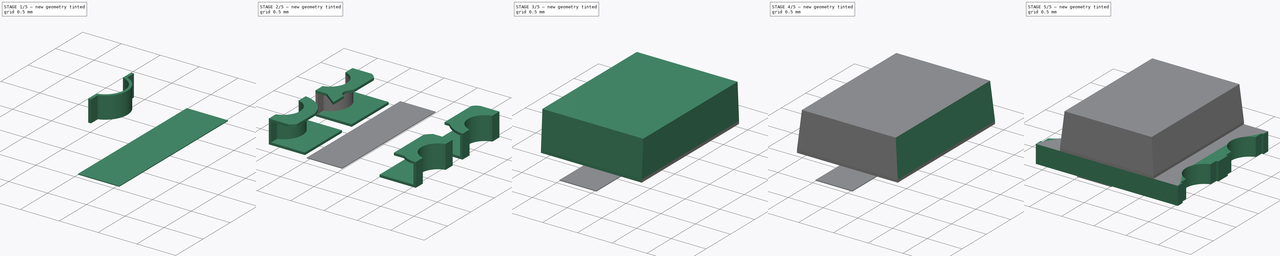
[diagram: build sequence overview — one tinted view per stage of 5, left to right]
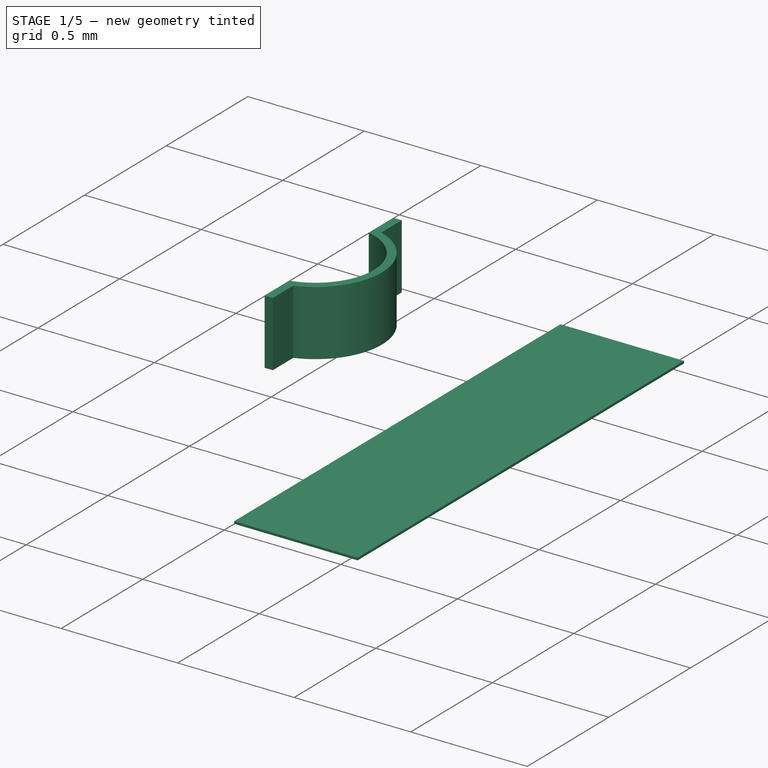
[diagram: stage 1 of 5 — iso view after this stage's code; geometry added in this stage tinted green]
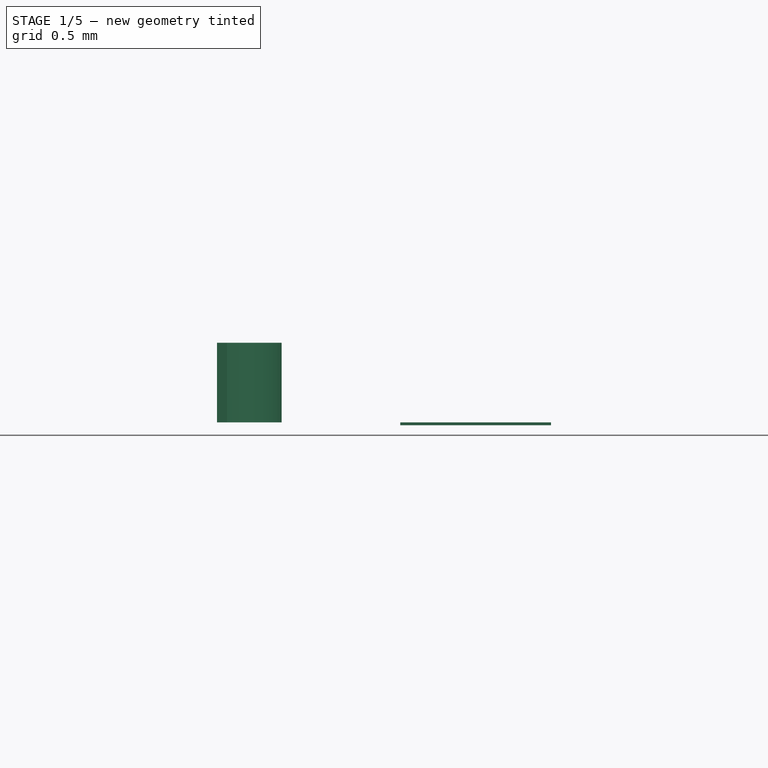
[diagram: stage 1 of 5 — front view after this stage's code; geometry added in this stage tinted green]
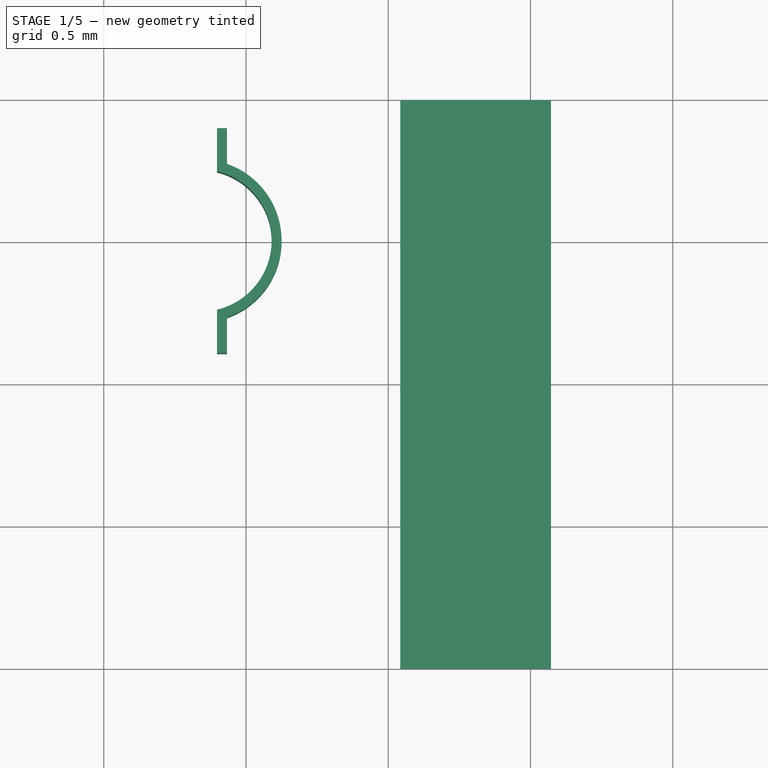
[diagram: stage 1 of 5 — top view after this stage's code; geometry added in this stage tinted green]
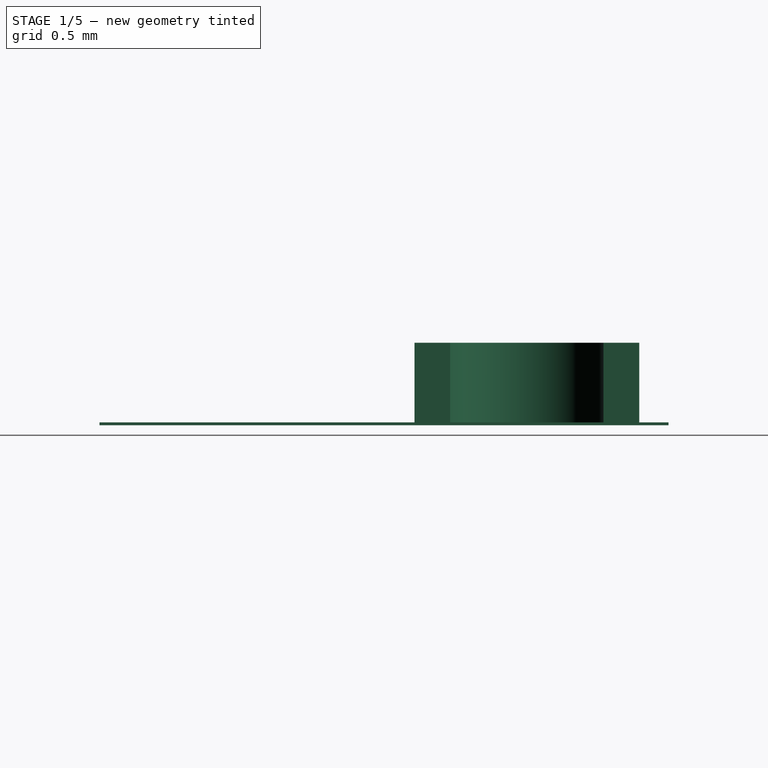
[diagram: stage 1 of 5 — right view after this stage's code; geometry added in this stage tinted green]
FCSTD DOCUMENT  (FreeCAD 1.0R39319 (Git))
Label: LED_WS2812B-2020_PLCC4_2.0x2.0mm
License: All rights reserved
LicenseURL: https://en.wikipedia.org/wiki/All_rights_reserved
objects: Sketcher::SketchObject×11, Part::Extrusion×10, Part::Chamfer×3, Image::ImagePlane×2, Part::Fuse×2, Part::FeaturePython×2
note: 39 computed .brp shape members not serialized (recipe doc carries the construction recipe); baked Part::Feature solids carry a one-line shape summary decoded from their .brp

FEATURE [Image::ImagePlane] _026_02_04_155943_hyprshot  label="TopView"
  Placement = pos=(-0.12,0.145,1) rot=(0,0,1;3.14159rad)
  XSize = 3.1853
  YSize = 3.37243
FEATURE [Image::ImagePlane] _026_02_04_155935_hyprshot  label="BackView"
  Placement = pos=(0.21,0.18,0) rot=(1,0,0;3.14159rad)
  XSize = 3.6473
  YSize = 3.36034
FEATURE [Sketcher::SketchObject] Sketch  label="PadBottom"
  ArcFitTolerance = 1e-06
  FullyConstrained = true
  MakeInternals = false
  sketch-geometry (6):
    g0: LineSegment StartX=-1.102 StartY=0.745179 StartZ=0 EndX=-1.102 EndY=0.897 EndZ=0
    g1: LineSegment StartX=-1.102 StartY=0.897 StartZ=0 EndX=-0.56 EndY=0.897 EndZ=0
    g2: LineSegment StartX=-0.56 StartY=0.897 StartZ=0 EndX=-0.56 EndY=0.107 EndZ=0
    g3: LineSegment StartX=-0.56 StartY=0.107 StartZ=0 EndX=-1.102 EndY=0.107 EndZ=0
    g4: LineSegment StartX=-1.102 StartY=0.107 StartZ=0 EndX=-1.102 EndY=0.258821 EndZ=0
    g5: ArcOfCircle CenterX=-1.16 CenterY=0.502 CenterZ=0 NormalX=0 NormalY=0 NormalZ=1 AngleXU=0 Radius=0.25 StartAngle=4.94652 EndAngle=7.61985
  constraints (19):
    c: Vertical(g0)
    c: Coincident(g0,g1)
    c: Horizontal(g1)
    c: Coincident(g1,g2)
    c: Vertical(g2)
    c: Coincident(g2,g3)
    c: Horizontal(g3)
    c: Coincident(g3,g4)
    c: Vertical(g4)
    c: Coincident(g5,g4)
    c: Coincident(g5,g0)
    c: Equal(g4,g0)
    c: Vertical(g0,g4)
    c: DistanceY(g2,g2) = 0.79
    c: DistanceX(g1,g1) = 0.542
    c: Radius(g5) = 0.25
    c: Distance(g5,g2) = 0.35
    c: Distance(g-2,g2) = 0.56
    c: Distance(g-1,g3) = 0.107
FEATURE [Part::Extrusion] Extrude
  Base = -> Sketch
  Dir = (0,0,1)
  DirMode = 2
  FaceMakerClass = Part::FaceMakerBullseye
  FaceMakerMode = 3
  LengthFwd = 0.035
  LengthRev = 0
  Solid = true
  Symmetric = false
FEATURE [Sketcher::SketchObject] Sketch001
  ArcFitTolerance = 1e-06
  AttachmentSupport = -> [Extrude]
  ExternalGeometry = -> [Extrude]
  FullyConstrained = true
  MakeInternals = false
  MapMode = 5
  Placement = pos=(0,0,0.035) rot=(0,0,1;0rad)
  sketch-geometry (8):
    g0: ArcOfCircle CenterX=-1.16 CenterY=0.502 CenterZ=0 NormalX=0 NormalY=0 NormalZ=1 AngleXU=0 Radius=0.25 StartAngle=4.94652 EndAngle=7.61985
    g1: ArcOfCircle CenterX=-1.16 CenterY=0.502 CenterZ=0 NormalX=0 NormalY=0 NormalZ=1 AngleXU=0 Radius=0.285 StartAngle=5.04479 EndAngle=7.52158
    g2: LineSegment StartX=-1.102 StartY=0.745179 StartZ=0 EndX=-1.102 EndY=0.897 EndZ=0
    g3: LineSegment StartX=-1.102 StartY=0.897 StartZ=0 EndX=-1.067 EndY=0.897 EndZ=0
    g4: LineSegment StartX=-1.067 StartY=0.897 StartZ=0 EndX=-1.067 EndY=0.771399 EndZ=0
    g5: LineSegment StartX=-1.067 StartY=0.232601 StartZ=0 EndX=-1.067 EndY=0.107 EndZ=0
    g6: LineSegment StartX=-1.067 StartY=0.107 StartZ=0 EndX=-1.102 EndY=0.107 EndZ=0
    g7: LineSegment StartX=-1.102 StartY=0.107 StartZ=0 EndX=-1.102 EndY=0.258821 EndZ=0
  constraints (21):
    c: Coincident(g0,g-4)
    c: Coincident(g0,g-5)
    c: Coincident(g0,g2)
    c: Coincident(g2,g-4)
    c: Coincident(g2,g3)
    c: Horizontal(g3)
    c: Coincident(g3,g4)
    c: Coincident(g4,g1)
    c: Vertical(g5)
    c: Coincident(g5,g6)
    c: Coincident(g6,g-5)
    c: Coincident(g6,g7)
    c: Coincident(g7,g0)
    c: Vertical(g4)
    c: Equal(g6,g3)
    c: Equal(g4,g5)
    c: DistanceX(g6,g6) = 0.035
    c: Coincident(g1,g5)
    c: Distance(g1,g0) = 0.035
    c: Coincident(g1,g-3)
    c: Coincident(g0,g1)
FEATURE [Part::Extrusion] Extrude001
  Base = -> Sketch001
  Dir = (0,0,1)
  DirMode = 2
  FaceMakerClass = Part::FaceMakerBullseye
  FaceMakerMode = 3
  LengthFwd = 0.28
  LengthRev = 0
  Solid = true
  Symmetric = false
FEATURE [Sketcher::SketchObject] Sketch010
  ArcFitTolerance = 1e-06
  AttachmentSupport = -> [Extrude003]
  FullyConstrained = true
  MakeInternals = false
  MapMode = 5
  Placement = pos=(0,0,0.035) rot=(1,0,0;3.14159rad)
  sketch-geometry (6):
    g0: LineSegment StartX=-0.458 StartY=1 StartZ=0 EndX=-0.458 EndY=-1 EndZ=0
    g1: LineSegment StartX=-0.458 StartY=-1 StartZ=0 EndX=0.072 EndY=-1 EndZ=0
    g2: LineSegment StartX=0.072 StartY=-1 StartZ=0 EndX=0.072 EndY=1 EndZ=0
    g3: LineSegment StartX=0.072 StartY=1 StartZ=0 EndX=-0.458 EndY=1 EndZ=0
    g4: LineSegment [constr] StartX=0.072 StartY=1 StartZ=0 EndX=0 EndY=0 EndZ=0
    g5: LineSegment [constr] StartX=0 StartY=0 StartZ=0 EndX=0.072 EndY=-1 EndZ=0
  constraints (16):
    c: Coincident(g0,g1)
    c: Coincident(g1,g2)
    c: Coincident(g2,g3)
    c: Coincident(g3,g0)
    c: Vertical(g0)
    c: Vertical(g2)
    c: Horizontal(g1)
    c: Horizontal(g3)
    c: DistanceX(g1,g1) = 0.53
    c: DistanceY(g0,g0) = 2
    c: Distance(g-1,g2) = 0.072
    c: Coincident(g4,g2)
    c: Coincident(g4,g-1)
    c: Coincident(g5,g4)
    c: Coincident(g5,g1)
    c: Equal(g5,g4)
FEATURE [Part::Extrusion] Extrude009  label="PolarityMark"
  Base = -> Sketch010
  Dir = (0,0,-1)
  DirMode = 2
  FaceMakerClass = Part::FaceMakerBullseye
  FaceMakerMode = 3
  LengthFwd = 0.01
  LengthRev = 0
  Solid = true
  Symmetric = false
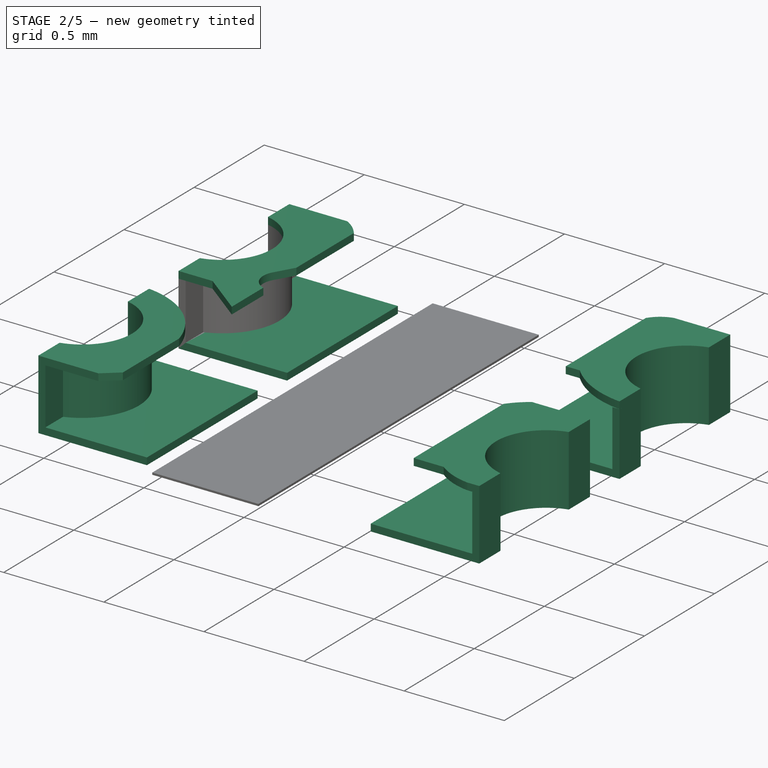
[diagram: stage 2 of 5 — iso view after this stage's code; geometry added in this stage tinted green]
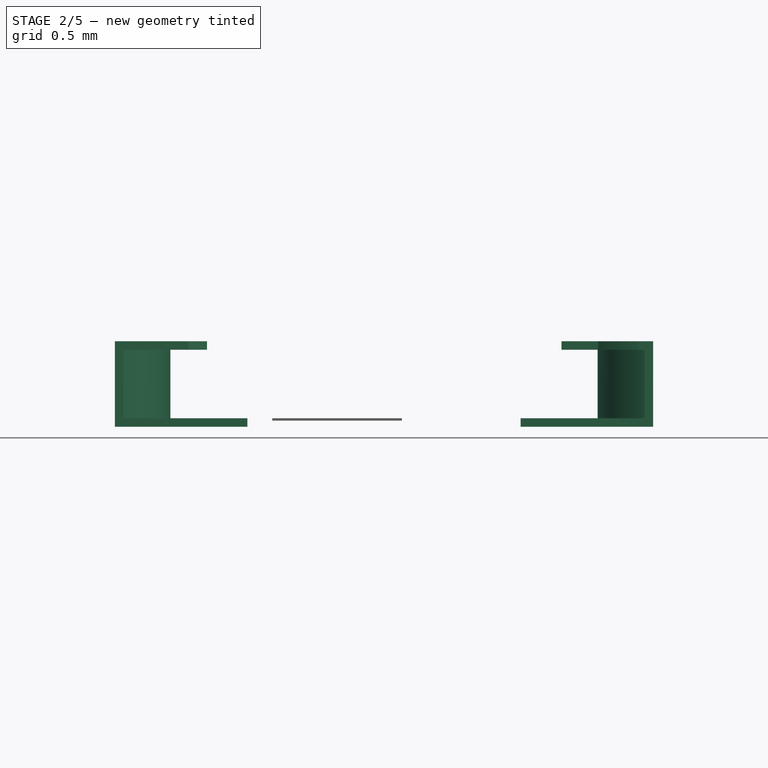
[diagram: stage 2 of 5 — front view after this stage's code; geometry added in this stage tinted green]
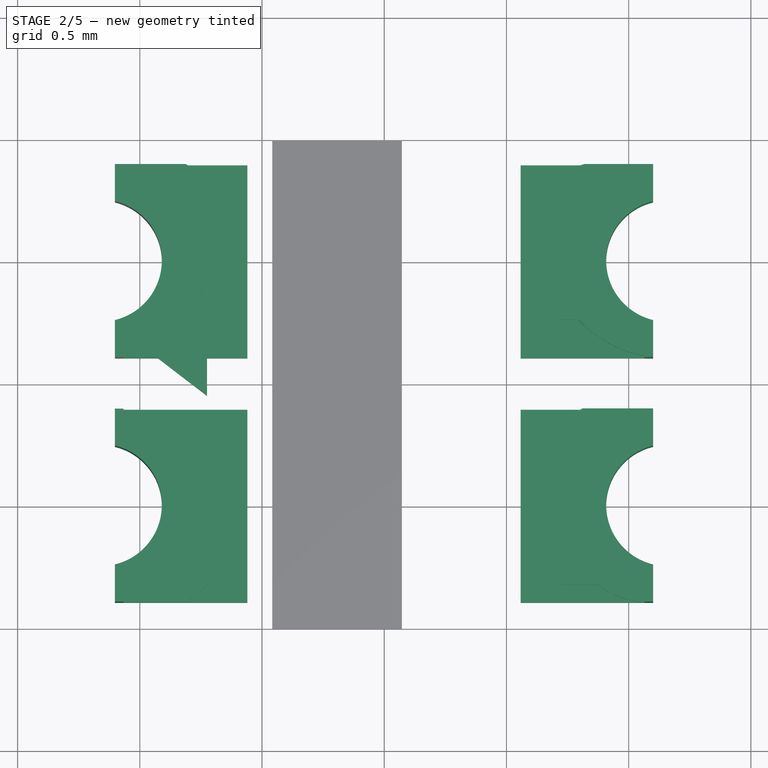
[diagram: stage 2 of 5 — top view after this stage's code; geometry added in this stage tinted green]
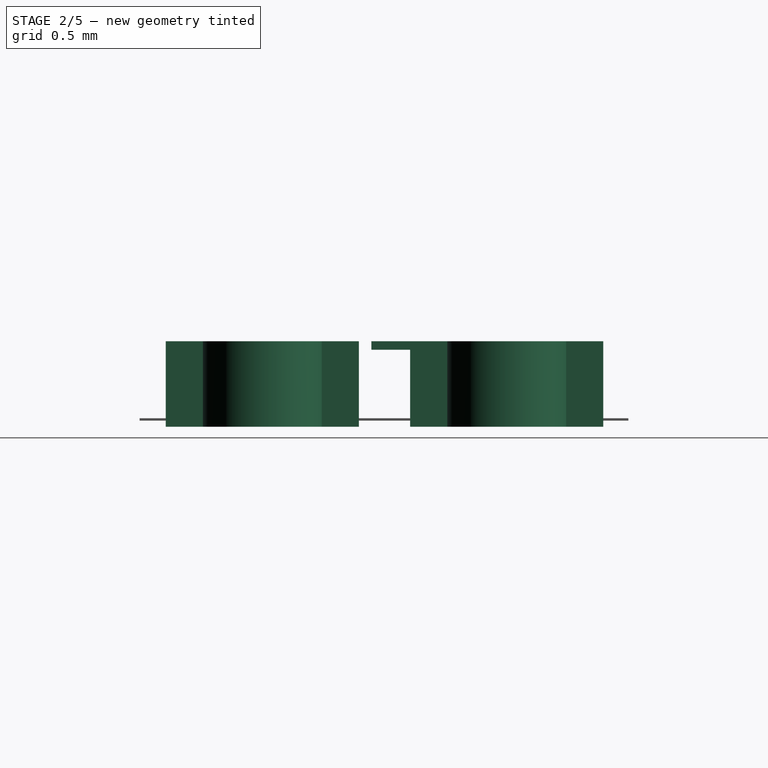
[diagram: stage 2 of 5 — right view after this stage's code; geometry added in this stage tinted green]
FEATURE [Part::Fuse] Fusion
  Base = -> Extrude
  Refine = true
  Tool = -> Extrude001
FEATURE [Part::FeaturePython] Array  # Draft array (typed FeaturePython)
  AlwaysSyncPlacement = false
  Angle = 360
  ArrayType = 0
  Axis = (0,0,1)
  Base = -> Fusion
  Center = (0,0,0)
  Count = 2
  ExpandArray = false
  Fuse = true
  IntervalAxis = (0,0,0)
  IntervalX = (100,0,0)
  IntervalY = (0,-1,0)
  IntervalZ = (0,0,100)
  NumberCircles = 3
  NumberPolar = 5
  NumberX = 1
  NumberY = 2
  NumberZ = 1
  PlacementList = 2 placements: [(0,0,0),(0,-1,0)]
  RadialDistance = 50
  ScaleList = (2) [(1,1,1),(1,1,1)]
  Symmetry = 1
  TangentialDistance = 25
FEATURE [Part::FeaturePython] Array001  # Draft array (typed FeaturePython)
  AlwaysSyncPlacement = false
  Angle = 360
  ArrayType = 1
  Axis = (0,0,1)
  Base = -> Array
  Center = (0,0,0)
  Count = 2
  ExpandArray = false
  Fuse = true
  IntervalAxis = (-0.002,0.004,0)
  IntervalX = (50,0,0)
  IntervalY = (0,50,0)
  IntervalZ = (0,0,50)
  NumberCircles = 3
  NumberPolar = 2
  NumberX = 2
  NumberY = 2
  NumberZ = 1
  PlacementList = 2 placements: [(0,0,0),(-0.002,0.004,0)]
  RadialDistance = 50
  ScaleList = (2) [(1,1,1),(1,1,1)]
  Symmetry = 1
  TangentialDistance = 25
FEATURE [Sketcher::SketchObject] Sketch002
  ArcFitTolerance = 1e-06
  AttachmentSupport = -> [Fusion]
  ExternalGeometry = -> [Fusion]
  FullyConstrained = true
  MakeInternals = false
  MapMode = 5
  Placement = pos=(0,0,0.315) rot=(0,0,1;0rad)
  sketch-geometry (39):
    g0: ArcOfCircle CenterX=-1.16 CenterY=0.502 CenterZ=0 NormalX=0 NormalY=0 NormalZ=1 AngleXU=0 Radius=0.25 StartAngle=4.94652 EndAngle=7.61985
    g1: LineSegment StartX=-1.102 StartY=0.745179 StartZ=0 EndX=-1.102 EndY=0.897 EndZ=0
    g2: LineSegment StartX=-1.102 StartY=0.258821 StartZ=0 EndX=-1.102 EndY=0.107 EndZ=0
    g3: ArcOfCircle CenterX=-1.16 CenterY=-0.498 CenterZ=0 NormalX=0 NormalY=0 NormalZ=1 AngleXU=0 Radius=0.25 StartAngle=4.94652 EndAngle=7.61985
    g4: LineSegment StartX=-1.102 StartY=-0.254821 StartZ=0 EndX=-1.102 EndY=-0.103 EndZ=0
    g5: LineSegment StartX=-1.102 StartY=-0.741179 StartZ=0 EndX=-1.102 EndY=-0.893 EndZ=0
    g6: ArcOfCircle CenterX=1.158 CenterY=-0.498 CenterZ=0 NormalX=0 NormalY=0 NormalZ=1 AngleXU=0 Radius=0.25 StartAngle=1.80493 EndAngle=4.47826
    g7: LineSegment StartX=1.1 StartY=-0.741179 StartZ=0 EndX=1.1 EndY=-0.893 EndZ=0
    g8: LineSegment StartX=1.1 StartY=-0.254821 StartZ=0 EndX=1.1 EndY=-0.103 EndZ=0
    g9: ArcOfCircle CenterX=1.158 CenterY=0.502 CenterZ=0 NormalX=0 NormalY=0 NormalZ=1 AngleXU=0 Radius=0.25 StartAngle=1.80493 EndAngle=4.47826
    g10: LineSegment StartX=1.1 StartY=0.258821 StartZ=0 EndX=1.1 EndY=0.107 EndZ=0
    g11: LineSegment StartX=1.1 StartY=0.745179 StartZ=0 EndX=1.1 EndY=0.897 EndZ=0
    g12: LineSegment StartX=-1.102 StartY=0.897 StartZ=0 EndX=-0.812 EndY=0.897 EndZ=0
    g13: LineSegment StartX=-1.102 StartY=0.107 StartZ=0 EndX=-0.932 EndY=0.107 EndZ=0
    g14: LineSegment StartX=-0.932 StartY=0.107 StartZ=0 EndX=-0.725 EndY=-0.0518367 EndZ=0
    g15: LineSegment StartX=-0.725 StartY=-0.0518367 StartZ=0 EndX=-0.725 EndY=0.173163 EndZ=0
    g16: LineSegment StartX=-0.725 StartY=0.409 StartZ=0 EndX=-0.725 EndY=0.819 EndZ=0
    g17: LineSegment StartX=-1.102 StartY=-0.893 StartZ=0 EndX=-0.802 EndY=-0.893 EndZ=0
    g18: LineSegment StartX=-0.802 StartY=-0.893 StartZ=0 EndX=-0.725 EndY=-0.828389 EndZ=0
    g19: LineSegment StartX=-0.725 StartY=-0.828389 StartZ=0 EndX=-0.725 EndY=-0.428389 EndZ=0
    g20: LineSegment [constr] StartX=-0.725 StartY=1 StartZ=0 EndX=-0.725 EndY=-1 EndZ=0
    g21: LineSegment [constr] StartX=-0.725 StartY=-1 StartZ=0 EndX=0.725 EndY=-1 EndZ=0
    g22: LineSegment [constr] StartX=0.725 StartY=-1 StartZ=0 EndX=0.725 EndY=1 EndZ=0
    g23: LineSegment [constr] StartX=0.725 StartY=1 StartZ=0 EndX=-0.725 EndY=1 EndZ=0
    g24: ArcOfCircle CenterX=-0.691327 CenterY=0.267323 CenterZ=0 NormalX=0 NormalY=0 NormalZ=1 AngleXU=0 Radius=0.1 StartAngle=2.61799 EndAngle=4.36895
    g25: LineSegment StartX=-0.777929 StartY=0.317323 StartZ=0 EndX=-0.725 EndY=0.409 EndZ=0
    g26: ArcOfCircle CenterX=-0.951299 CenterY=0.654109 CenterZ=0 NormalX=0 NormalY=0 NormalZ=1 AngleXU=0 Radius=0.28 StartAngle=0.629691 EndAngle=1.05009
    g27: ArcOfCircle CenterX=-1.15841 CenterY=-0.54945 CenterZ=0 NormalX=0 NormalY=0 NormalZ=1 AngleXU=0 Radius=0.45 StartAngle=0.27238 EndAngle=1.44511
    g28: LineSegment StartX=1.1 StartY=0.897 StartZ=0 EndX=0.82 EndY=0.897 EndZ=0
    g29: LineSegment StartX=0.725 StartY=0.83 StartZ=0 EndX=0.725 EndY=0.26 EndZ=0
    g30: LineSegment StartX=0.795 StartY=0.26 StartZ=0 EndX=0.725 EndY=0.26 EndZ=0
    g31: LineSegment StartX=1.1 StartY=-0.103 StartZ=0 EndX=0.81 EndY=-0.103 EndZ=0
    g32: LineSegment StartX=0.725 StartY=-0.185 StartZ=0 EndX=0.725 EndY=-0.825 EndZ=0
    g33: LineSegment StartX=0.725 StartY=-0.825 StartZ=0 EndX=0.875 EndY=-0.825 EndZ=0
    g34: LineSegment StartX=1.1 StartY=-0.893 StartZ=0 EndX=1.04 EndY=-0.893 EndZ=0
    g35: ArcOfCircle CenterX=1.08645 CenterY=-0.546097 CenterZ=0 NormalX=0 NormalY=0 NormalZ=1 AngleXU=0 Radius=0.35 StartAngle=4.06368 EndAngle=4.57927
    g36: ArcOfCircle CenterX=1.00702 CenterY=-0.392281 CenterZ=0 NormalX=0 NormalY=0 NormalZ=1 AngleXU=0 Radius=0.35 StartAngle=2.1687 EndAngle=2.50777
    g37: ArcOfCircle CenterX=0.852197 CenterY=0.750496 CenterZ=0 NormalX=0 NormalY=0 NormalZ=1 AngleXU=0 Radius=0.15 StartAngle=1.78713 EndAngle=2.58296
    g38: ArcOfCircle CenterX=1.15346 CenterY=0.594075 CenterZ=0 NormalX=0 NormalY=0 NormalZ=1 AngleXU=0 Radius=0.49 StartAngle=3.89179 EndAngle=4.60307
  constraints (122):
    c: Coincident(g0,g-4)
    c: Coincident(g0,g-5)
    c: Coincident(g0,g-3)
    c: Coincident(g1,g0)
    c: Coincident(g1,g-4)
    c: Coincident(g2,g0)
    c: Coincident(g2,g-5)
    c: Coincident(g4,g3)
    c: Coincident(g5,g3)
    c: DistanceY(g3,g0) = 1
    c: Vertical(g4)
    c: Vertical(g5)
    c: Vertical(g3,g3)
    c: Vertical(g2,g4)
    c: Equal(g4,g5)
    c: Equal(g4,g2)
    c: Equal(g3,g0)
    c: Vertical(g0,g3)
    c: Coincident(g7,g6)
    c: Coincident(g8,g6)
    c: Coincident(g10,g9)
    c: Coincident(g11,g9)
    c: Equal(g10,g11)
    c: Equal(g10,g8)
    c: Equal(g9,g6)
    c: Vertical(g11)
    c: Vertical(g10)
    c: Vertical(g8)
    c: Vertical(g7)
    c: Distance(g11,g-2) = 1.1
    c: Equal(g0,g9)
    c: Horizontal(g1,g11)
    c: Horizontal(g8,g4)
    c: Vertical(g6,g9)
    c: Equal(g11,g1)
    c: Horizontal(g2,g10)
    c: Vertical(g9,g9)
    c: Vertical(g6,g6)
    c: Vertical(g8,g10)
    c: Equal(g7,g8)
    c: Coincident(g12,g1)
    c: Horizontal(g12)
    c: Coincident(g13,g2)
    c: Horizontal(g13)
    c: Coincident(g14,g13)
    c: Coincident(g15,g14)
    c: Vertical(g15)
    c: Vertical(g16)
    c: Coincident(g17,g5)
    c: Horizontal(g17)
    c: Coincident(g18,g17)
    c: Coincident(g19,g18)
    c: Vertical(g19)
    c: DistanceX(g17,g17) = 0.3
    c: Coincident(g20,g21)
    c: Coincident(g21,g22)
    c: Coincident(g22,g23)
    c: Coincident(g23,g20)
    c: Vertical(g20)
    c: Vertical(g22)
    c: Horizontal(g21)
    c: Horizontal(g23)
    c: DistanceX(g21,g21) = 1.45
    c: DistanceY(g20,g20) = 2
    c: Symmetric(g20,g21,g-1)
    c: DistanceX(g13,g13) = 0.17
    c: Coincident(g24,g15)
    c: Coincident(g25,g16)
    c: Tangent(g25,g24) = 1.5708
    c: Coincident(g26,g12)
    c: Coincident(g26,g16)
    c: Radius(g26) = 0.28
    c: DistanceX(g12,g12) = 0.29
    c: DistanceY(g16,g16) = 0.41
    c: Radius(g24) = 0.1
    c: PointOnObject(g15,g20)
    c: Angle(g15,g14) = 0.916298
    c: DistanceY(g15,g15) = 0.225
    c: PointOnObject(g16,g20)
    c: DistanceY(g16,g12) = 0.078
    c: Angle(g25,g20) = 0.523599
    c: Coincident(g27,g4)
    c: PointOnObject(g27,g20)
    c: Coincident(g19,g27)
    c: Radius(g27) = 0.45
    c: Angle(g18,g20) = 0.872665
    c: DistanceY(g19,g19) = 0.4
    c: Coincident(g28,g11)
    c: Horizontal(g28)
    c: PointOnObject(g29,g22)
    c: PointOnObject(g29,g22)
    c: Coincident(g30,g29)
    c: Horizontal(g30)
    c: Coincident(g31,g8)
    c: Horizontal(g31)
    c: PointOnObject(g32,g22)
    c: PointOnObject(g32,g22)
    c: Coincident(g33,g32)
    c: Horizontal(g33)
    c: Coincident(g34,g7)
    c: Horizontal(g34)
    c: Coincident(g35,g33)
    c: Coincident(g35,g34)
    c: Radius(g35) = 0.35
    c: DistanceX(g33,g33) = 0.15
    c: DistanceY(g21,g32) = 0.175
    c: DistanceX(g34,g34) = 0.06
    c: DistanceY(g32,g32) = 0.64
    c: Coincident(g36,g32)
    c: Coincident(g36,g31)
    c: Radius(g36) = 0.35
    c: DistanceX(g31,g31) = 0.29
    c: DistanceX(g28,g28) = 0.28
    c: Coincident(g37,g29)
    c: Coincident(g37,g28)
    c: Radius(g37) = 0.15
    c: Coincident(g38,g30)
    c: Coincident(g38,g10)
    c: Radius(g38) = 0.49
    c: DistanceY(g29,g29) = 0.57
    c: Distance(g30,g30) = 0.07
    c: Distance(g29,g-1) = 0.26
FEATURE [Part::Extrusion] Extrude002  label="TopPad"
  Base = -> Sketch002
  Dir = (0,0,1)
  DirMode = 2
  FaceMakerClass = Part::FaceMakerBullseye
  FaceMakerMode = 3
  LengthFwd = 0.035
  LengthRev = 0
  Solid = true
  Symmetric = false
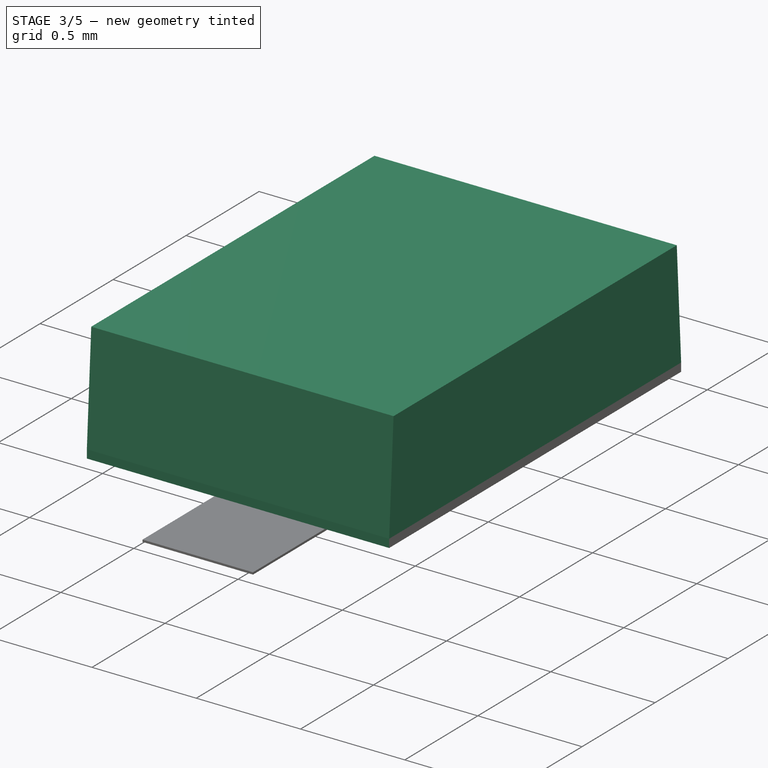
[diagram: stage 3 of 5 — iso view after this stage's code; geometry added in this stage tinted green]
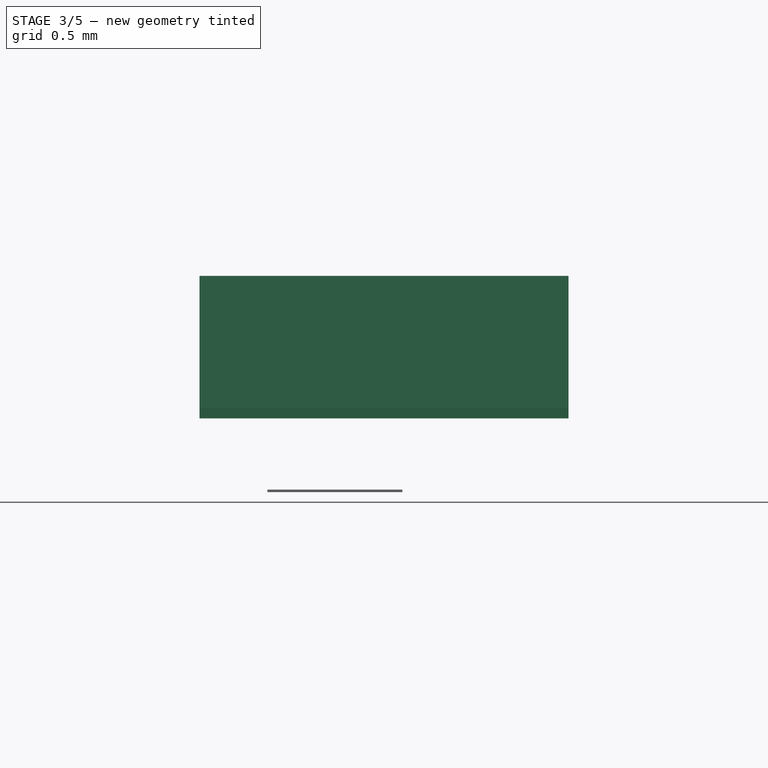
[diagram: stage 3 of 5 — front view after this stage's code; geometry added in this stage tinted green]
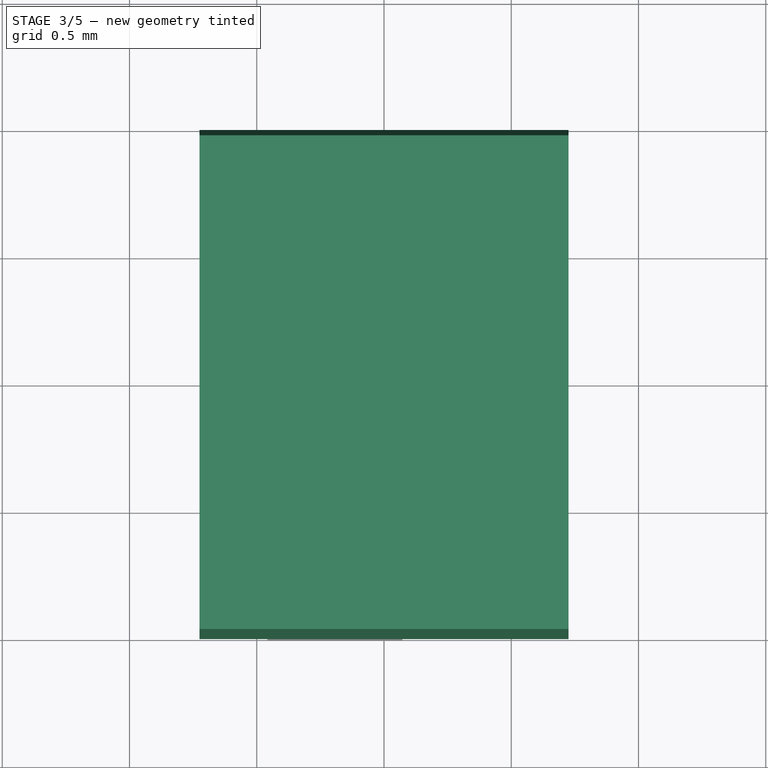
[diagram: stage 3 of 5 — top view after this stage's code; geometry added in this stage tinted green]
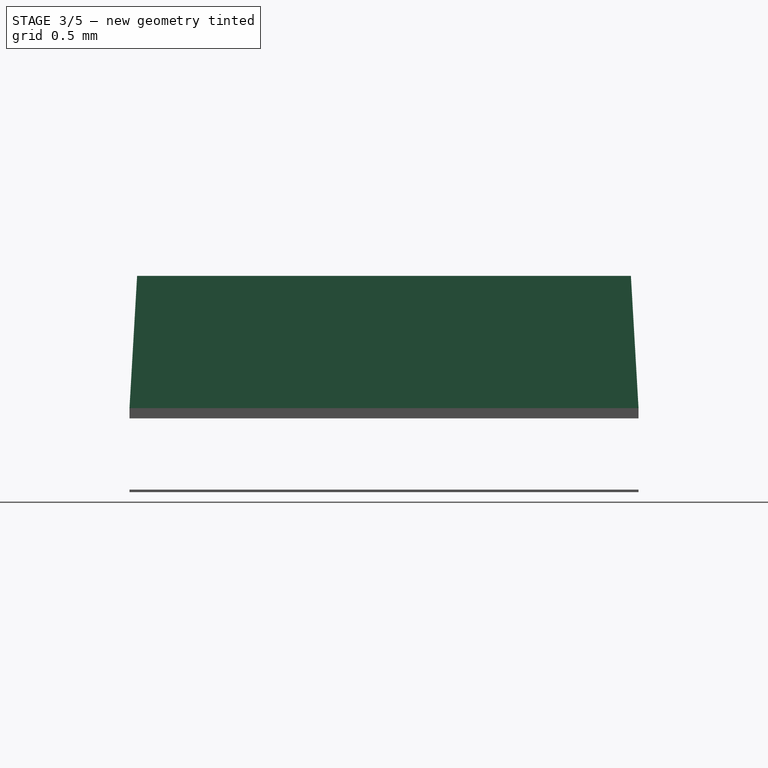
[diagram: stage 3 of 5 — right view after this stage's code; geometry added in this stage tinted green]
FEATURE [Part::Fuse] Fusion001  label="Pads"
  Base = -> Array001
  Refine = true
  Tool = -> Extrude002
FEATURE [Sketcher::SketchObject] Sketch009  label="CoverSketch"
  ArcFitTolerance = 1e-06
  AttachmentSupport = -> [Extrude003]
  ExternalGeometry = -> [Fusion001]
  FullyConstrained = true
  MakeInternals = false
  MapMode = 5
  Placement = pos=(0,0,0.315) rot=(0,0,1;0rad)
  sketch-geometry (4):
    g0: LineSegment StartX=-0.725 StartY=1 StartZ=0 EndX=-0.725 EndY=-1 EndZ=0
    g1: LineSegment StartX=-0.725 StartY=-1 StartZ=0 EndX=0.725 EndY=-1 EndZ=0
    g2: LineSegment StartX=0.725 StartY=-1 StartZ=0 EndX=0.725 EndY=1 EndZ=0
    g3: LineSegment StartX=0.725 StartY=1 StartZ=0 EndX=-0.725 EndY=1 EndZ=0
  constraints (11):
    c: Coincident(g0,g1)
    c: Coincident(g1,g2)
    c: Coincident(g2,g3)
    c: Coincident(g3,g0)
    c: Vertical(g0)
    c: Vertical(g2)
    c: Horizontal(g1)
    c: Horizontal(g3)
    c: DistanceY(g2,g2) = 2
    c: PointOnObject(g-3,g0)
    c: Symmetric(g0,g1,g-1)
FEATURE [Part::Extrusion] Extrude008
  Base = -> Sketch009
  Dir = (0,0,1)
  DirMode = 2
  FaceMakerClass = Part::FaceMakerBullseye
  FaceMakerMode = 3
  LengthFwd = 0.56
  LengthRev = 0
  Solid = true
  Symmetric = false
FEATURE [Part::Chamfer] Chamfer
  Base = -> Extrude008
  EdgeLinks = -> Extrude008 [Edge7,Edge12]
  Edges = 2 edges: [Edge7 r1=0.52 r2=0.03,Edge12 r1=0.52 r2=0.03]
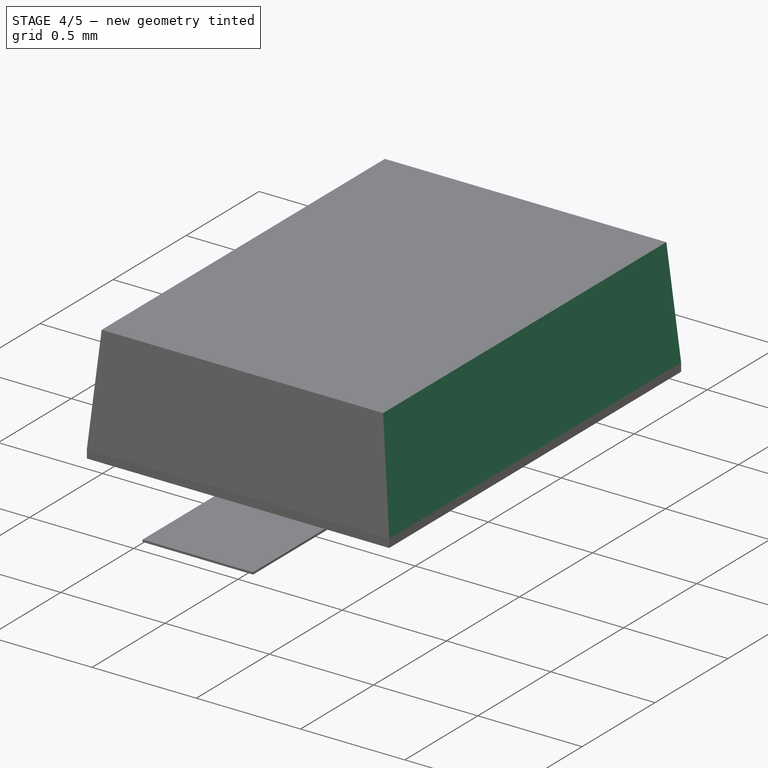
[diagram: stage 4 of 5 — iso view after this stage's code; geometry added in this stage tinted green]
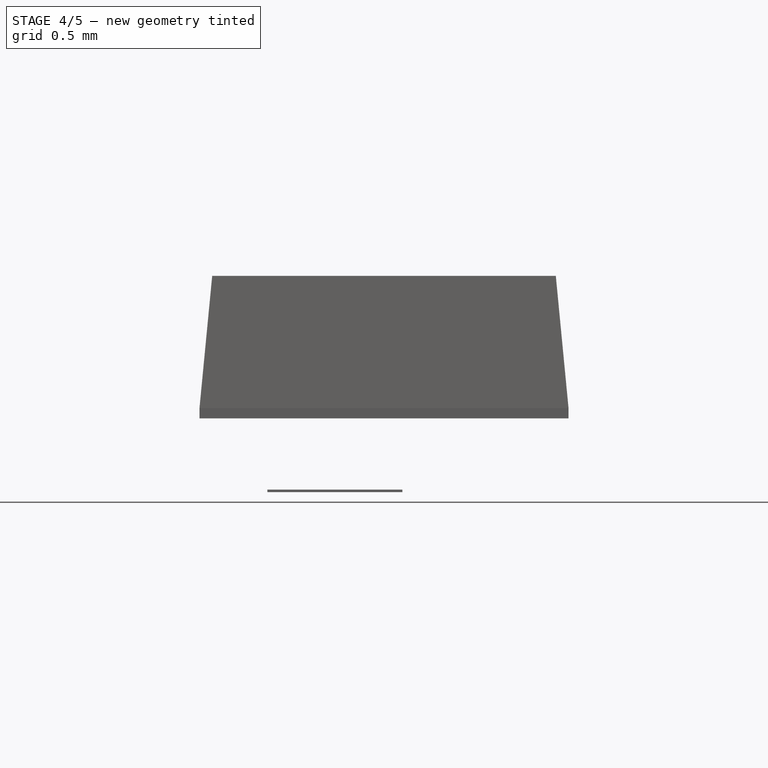
[diagram: stage 4 of 5 — front view after this stage's code; geometry added in this stage tinted green]
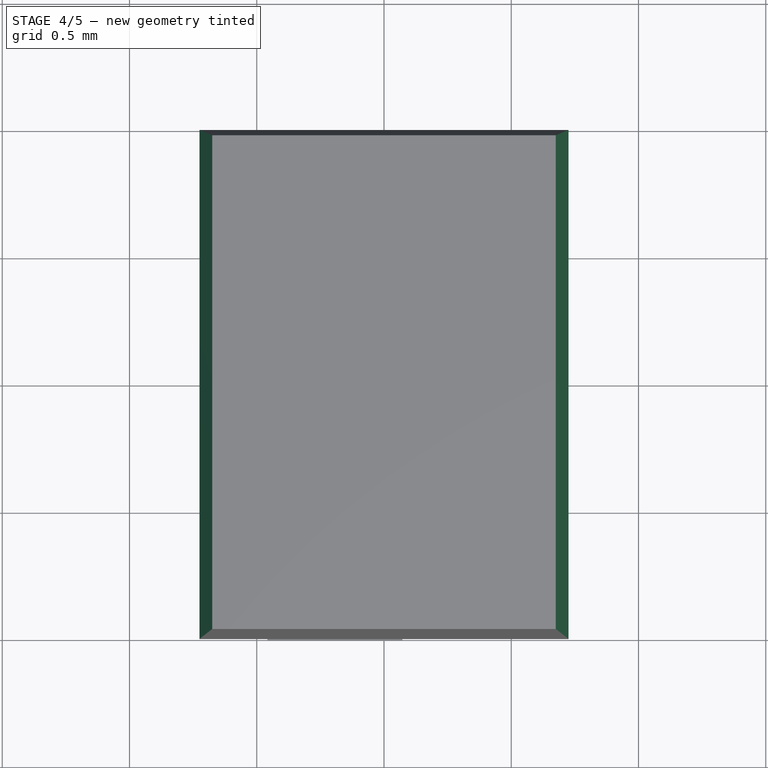
[diagram: stage 4 of 5 — top view after this stage's code; geometry added in this stage tinted green]
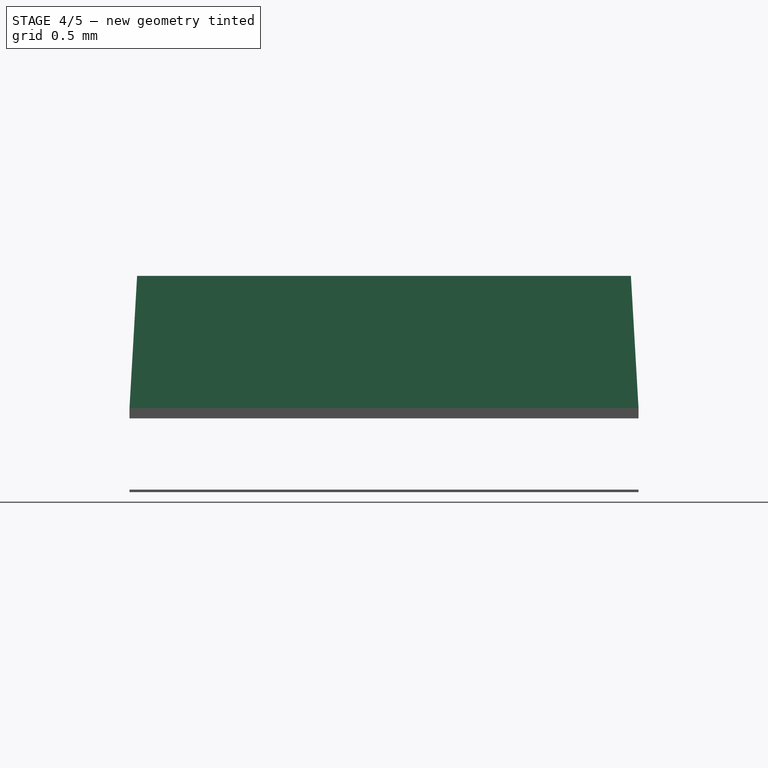
[diagram: stage 4 of 5 — right view after this stage's code; geometry added in this stage tinted green]
FEATURE [Sketcher::SketchObject] Sketch007  label="RSketch"
  ArcFitTolerance = 1e-06
  AttachmentSupport = -> [Extrude003]
  ExternalGeometry = -> [Fusion001]
  FullyConstrained = true
  MakeInternals = false
  MapMode = 5
  Placement = pos=(0,0,0.315) rot=(0,0,1;0rad)
  expr: Constraints[43] = Sketch004.Constraints[43]
  expr: Constraints[44] = Sketch004.Constraints[44]
  expr: Constraints[45] = Sketch004.Constraints[45]
  expr: Constraints[46] = Sketch004.Constraints[46]
  expr: Constraints[47] = Sketch004.Constraints[47]
  expr: Constraints[48] = Sketch004.Constraints[48]
  expr: Constraints[49] = Sketch004.Constraints[49]
  expr: Constraints[50] = Sketch004.Constraints[50]
  expr: Constraints[51] = Sketch004.Constraints[51]
  expr: Constraints[52] = Sketch004.Constraints[52]
  expr: Constraints[53] = Sketch004.Constraints[53]
  expr: Constraints[54] = Sketch004.Constraints[54]
  expr: Constraints[55] = Sketch004.Constraints[55]
  expr: Constraints[56] = Sketch004.Constraints[56]
  expr: Constraints[57] = Sketch004.Constraints[57]
  expr: Constraints[58] = Sketch004.Constraints[58]
  expr: Constraints[9] = Sketch004.Constraints[9]
  sketch-geometry (20):
    g0: LineSegment [constr] StartX=-0.725 StartY=1 StartZ=0 EndX=-0.725 EndY=-1 EndZ=0
    g1: LineSegment [constr] StartX=-0.725 StartY=-1 StartZ=0 EndX=0.725 EndY=-1 EndZ=0
    g2: LineSegment [constr] StartX=0.725 StartY=-1 StartZ=0 EndX=0.725 EndY=1 EndZ=0
    g3: LineSegment [constr] StartX=0.725 StartY=1 StartZ=0 EndX=-0.725 EndY=1 EndZ=0
    g4: LineSegment [constr] StartX=-0.28 StartY=-0.12 StartZ=0 EndX=-0.28 EndY=-0.545 EndZ=0
    g5: LineSegment [constr] StartX=-0.28 StartY=-0.545 StartZ=0 EndX=0.485 EndY=-0.545 EndZ=0
    g6: LineSegment [constr] StartX=0.485 StartY=-0.545 StartZ=0 EndX=0.485 EndY=-0.12 EndZ=0
    g7: LineSegment [constr] StartX=0.485 StartY=-0.12 StartZ=0 EndX=-0.28 EndY=-0.12 EndZ=0
    g8: LineSegment [constr] StartX=-0.385 StartY=0.325 StartZ=0 EndX=-0.385 EndY=0.12 EndZ=0
    g9: LineSegment [constr] StartX=-0.385 StartY=0.12 StartZ=0 EndX=-0.235 EndY=0.12 EndZ=0
    g10: LineSegment [constr] StartX=-0.235 StartY=0.12 StartZ=0 EndX=-0.235 EndY=0.325 EndZ=0
    g11: LineSegment [constr] StartX=-0.235 StartY=0.325 StartZ=0 EndX=-0.385 EndY=0.325 EndZ=0
    g12: LineSegment StartX=-0.09 StartY=0.335 StartZ=0 EndX=-0.09 EndY=0.125 EndZ=0
    g13: LineSegment StartX=-0.09 StartY=0.125 StartZ=0 EndX=0.105 EndY=0.125 EndZ=0
    g14: LineSegment StartX=0.105 StartY=0.125 StartZ=0 EndX=0.105 EndY=0.335 EndZ=0
    g15: LineSegment StartX=0.105 StartY=0.335 StartZ=0 EndX=-0.09 EndY=0.335 EndZ=0
    g16: LineSegment [constr] StartX=0.265 StartY=0.315 StartZ=0 EndX=0.265 EndY=0.13 EndZ=0
    g17: LineSegment [constr] StartX=0.265 StartY=0.13 StartZ=0 EndX=0.395 EndY=0.13 EndZ=0
    g18: LineSegment [constr] StartX=0.395 StartY=0.13 StartZ=0 EndX=0.395 EndY=0.315 EndZ=0
    g19: LineSegment [constr] StartX=0.395 StartY=0.315 StartZ=0 EndX=0.265 EndY=0.315 EndZ=0
  constraints (59):
    c: Coincident(g0,g1)
    c: Coincident(g1,g2)
    c: Coincident(g2,g3)
    c: Coincident(g3,g0)
    c: Vertical(g0)
    c: Vertical(g2)
    c: Horizontal(g1)
    c: Horizontal(g3)
    c: Symmetric(g1,g0,g-1)
    c: DistanceY(g2,g2) = 2
    c: PointOnObject(g-3,g2)
    c: Coincident(g4,g5)
    c: Coincident(g5,g6)
    c: Coincident(g6,g7)
    c: Coincident(g7,g4)
    c: Vertical(g4)
    c: Vertical(g6)
    c: Horizontal(g5)
    c: Horizontal(g7)
    c: Coincident(g8,g9)
    c: Coincident(g9,g10)
    c: Coincident(g10,g11)
    c: Coincident(g11,g8)
    c: Vertical(g8)
    c: Vertical(g10)
    c: Horizontal(g9)
    c: Horizontal(g11)
    c: Coincident(g12,g13)
    c: Coincident(g13,g14)
    c: Coincident(g14,g15)
    c: Coincident(g15,g12)
    c: Vertical(g12)
    c: Vertical(g14)
    c: Horizontal(g13)
    c: Horizontal(g15)
    c: Coincident(g16,g17)
    c: Coincident(g17,g18)
    c: Coincident(g18,g19)
    c: Coincident(g19,g16)
    c: Vertical(g16)
    c: Vertical(g18)
    c: Horizontal(g17)
    c: Horizontal(g19)
    c: DistanceX(g5,g5) = 0.765
    c: DistanceY(g4,g4) = 0.425
    c: DistanceX(g11,g11) = 0.15
    c: DistanceY(g8,g8) = 0.205
    c: DistanceY(g12,g12) = 0.21
    c: DistanceX(g15,g15) = 0.195
    c: DistanceY(g16,g16) = 0.185
    c: DistanceX(g19,g19) = 0.13
    c: DistanceY(g-1,g12) = 0.125
    c: DistanceY(g-1,g8) = 0.12
    c: DistanceY(g-1,g16) = 0.13
    c: DistanceY(g4,g-1) = 0.12
    c: DistanceX(g9,g-1) = 0.235
    c: DistanceX(g-1,g13) = 0.105
    c: DistanceX(g-1,g17) = 0.395
    c: DistanceX(g-1,g6) = 0.485
FEATURE [Part::Extrusion] Extrude006  label="R"
  Base = -> Sketch007
  Dir = (0,0,1)
  DirMode = 2
  FaceMakerClass = Part::FaceMakerBullseye
  FaceMakerMode = 3
  LengthFwd = 0.05
  LengthRev = 0
  Solid = true
  Symmetric = false
FEATURE [Sketcher::SketchObject] Sketch008  label="GSketch"
  ArcFitTolerance = 1e-06
  AttachmentSupport = -> [Extrude003]
  ExternalGeometry = -> [Fusion001]
  FullyConstrained = true
  MakeInternals = false
  MapMode = 5
  Placement = pos=(0,0,0.315) rot=(0,0,1;0rad)
  expr: Constraints[43] = Sketch004.Constraints[43]
  expr: Constraints[44] = Sketch004.Constraints[44]
  expr: Constraints[45] = Sketch004.Constraints[45]
  expr: Constraints[46] = Sketch004.Constraints[46]
  expr: Constraints[47] = Sketch004.Constraints[47]
  expr: Constraints[48] = Sketch004.Constraints[48]
  expr: Constraints[49] = Sketch004.Constraints[49]
  expr: Constraints[50] = Sketch004.Constraints[50]
  expr: Constraints[51] = Sketch004.Constraints[51]
  expr: Constraints[52] = Sketch004.Constraints[52]
  expr: Constraints[53] = Sketch004.Constraints[53]
  expr: Constraints[54] = Sketch004.Constraints[54]
  expr: Constraints[55] = Sketch004.Constraints[55]
  expr: Constraints[56] = Sketch004.Constraints[56]
  expr: Constraints[57] = Sketch004.Constraints[57]
  expr: Constraints[58] = Sketch004.Constraints[58]
  expr: Constraints[9] = Sketch004.Constraints[9]
  sketch-geometry (20):
    g0: LineSegment [constr] StartX=-0.725 StartY=1 StartZ=0 EndX=-0.725 EndY=-1 EndZ=0
    g1: LineSegment [constr] StartX=-0.725 StartY=-1 StartZ=0 EndX=0.725 EndY=-1 EndZ=0
    g2: LineSegment [constr] StartX=0.725 StartY=-1 StartZ=0 EndX=0.725 EndY=1 EndZ=0
    g3: LineSegment [constr] StartX=0.725 StartY=1 StartZ=0 EndX=-0.725 EndY=1 EndZ=0
    g4: LineSegment [constr] StartX=-0.28 StartY=-0.12 StartZ=0 EndX=-0.28 EndY=-0.545 EndZ=0
    g5: LineSegment [constr] StartX=-0.28 StartY=-0.545 StartZ=0 EndX=0.485 EndY=-0.545 EndZ=0
    g6: LineSegment [constr] StartX=0.485 StartY=-0.545 StartZ=0 EndX=0.485 EndY=-0.12 EndZ=0
    g7: LineSegment [constr] StartX=0.485 StartY=-0.12 StartZ=0 EndX=-0.28 EndY=-0.12 EndZ=0
    g8: LineSegment [constr] StartX=-0.385 StartY=0.325 StartZ=0 EndX=-0.385 EndY=0.12 EndZ=0
    g9: LineSegment [constr] StartX=-0.385 StartY=0.12 StartZ=0 EndX=-0.235 EndY=0.12 EndZ=0
    g10: LineSegment [constr] StartX=-0.235 StartY=0.12 StartZ=0 EndX=-0.235 EndY=0.325 EndZ=0
    g11: LineSegment [constr] StartX=-0.235 StartY=0.325 StartZ=0 EndX=-0.385 EndY=0.325 EndZ=0
    g12: LineSegment [constr] StartX=-0.09 StartY=0.335 StartZ=0 EndX=-0.09 EndY=0.125 EndZ=0
    g13: LineSegment [constr] StartX=-0.09 StartY=0.125 StartZ=0 EndX=0.105 EndY=0.125 EndZ=0
    g14: LineSegment [constr] StartX=0.105 StartY=0.125 StartZ=0 EndX=0.105 EndY=0.335 EndZ=0
    g15: LineSegment [constr] StartX=0.105 StartY=0.335 StartZ=0 EndX=-0.09 EndY=0.335 EndZ=0
    g16: LineSegment StartX=0.265 StartY=0.315 StartZ=0 EndX=0.265 EndY=0.13 EndZ=0
    g17: LineSegment StartX=0.265 StartY=0.13 StartZ=0 EndX=0.395 EndY=0.13 EndZ=0
    g18: LineSegment StartX=0.395 StartY=0.13 StartZ=0 EndX=0.395 EndY=0.315 EndZ=0
    g19: LineSegment StartX=0.395 StartY=0.315 StartZ=0 EndX=0.265 EndY=0.315 EndZ=0
  constraints (59):
    c: Coincident(g0,g1)
    c: Coincident(g1,g2)
    c: Coincident(g2,g3)
    c: Coincident(g3,g0)
    c: Vertical(g0)
    c: Vertical(g2)
    c: Horizontal(g1)
    c: Horizontal(g3)
    c: Symmetric(g1,g0,g-1)
    c: DistanceY(g2,g2) = 2
    c: PointOnObject(g-3,g2)
    c: Coincident(g4,g5)
    c: Coincident(g5,g6)
    c: Coincident(g6,g7)
    c: Coincident(g7,g4)
    c: Vertical(g4)
    c: Vertical(g6)
    c: Horizontal(g5)
    c: Horizontal(g7)
    c: Coincident(g8,g9)
    c: Coincident(g9,g10)
    c: Coincident(g10,g11)
    c: Coincident(g11,g8)
    c: Vertical(g8)
    c: Vertical(g10)
    c: Horizontal(g9)
    c: Horizontal(g11)
    c: Coincident(g12,g13)
    c: Coincident(g13,g14)
    c: Coincident(g14,g15)
    c: Coincident(g15,g12)
    c: Vertical(g12)
    c: Vertical(g14)
    c: Horizontal(g13)
    c: Horizontal(g15)
    c: Coincident(g16,g17)
    c: Coincident(g17,g18)
    c: Coincident(g18,g19)
    c: Coincident(g19,g16)
    c: Vertical(g16)
    c: Vertical(g18)
    c: Horizontal(g17)
    c: Horizontal(g19)
    c: DistanceX(g5,g5) = 0.765
    c: DistanceY(g4,g4) = 0.425
    c: DistanceX(g11,g11) = 0.15
    c: DistanceY(g8,g8) = 0.205
    c: DistanceY(g12,g12) = 0.21
    c: DistanceX(g15,g15) = 0.195
    c: DistanceY(g16,g16) = 0.185
    c: DistanceX(g19,g19) = 0.13
    c: DistanceY(g-1,g12) = 0.125
    c: DistanceY(g-1,g8) = 0.12
    c: DistanceY(g-1,g16) = 0.13
    c: DistanceY(g4,g-1) = 0.12
    c: DistanceX(g9,g-1) = 0.235
    c: DistanceX(g-1,g13) = 0.105
    c: DistanceX(g-1,g17) = 0.395
    c: DistanceX(g-1,g6) = 0.485
FEATURE [Part::Extrusion] Extrude007  label="G"
  Base = -> Sketch008
  Dir = (0,0,1)
  DirMode = 2
  FaceMakerClass = Part::FaceMakerBullseye
  FaceMakerMode = 3
  LengthFwd = 0.05
  LengthRev = 0
  Solid = true
  Symmetric = false
FEATURE [Part::Chamfer] Chamfer001
  Base = -> Chamfer
  EdgeLinks = -> Chamfer [Edge15]
  Edges = 1 edges: [Edge15 r1=0.05 r2=0.52]
FEATURE [Part::Chamfer] Chamfer002  label="Cover"
  Base = -> Chamfer001
  EdgeLinks = -> Chamfer001 [Edge6]
  Edges = 1 edges: [Edge6 r1=0.05 r2=0.52]
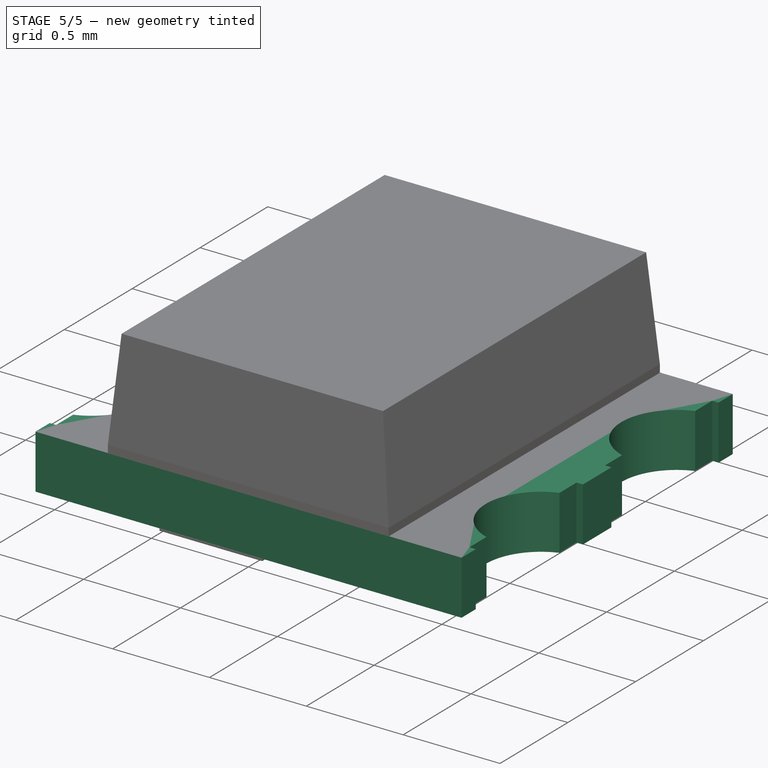
[diagram: stage 5 of 5 — iso view after this stage's code; geometry added in this stage tinted green]
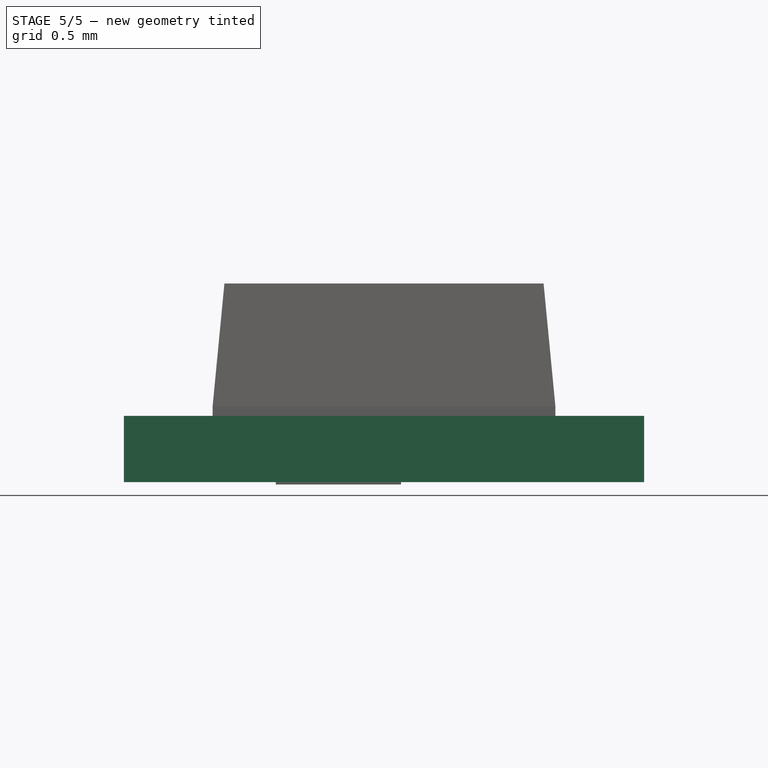
[diagram: stage 5 of 5 — front view after this stage's code; geometry added in this stage tinted green]
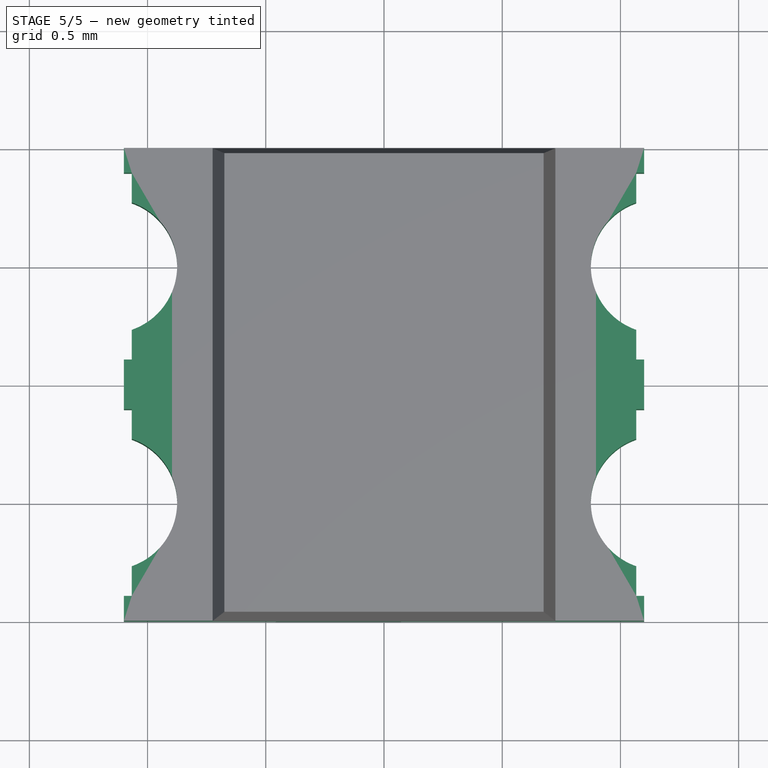
[diagram: stage 5 of 5 — top view after this stage's code; geometry added in this stage tinted green]
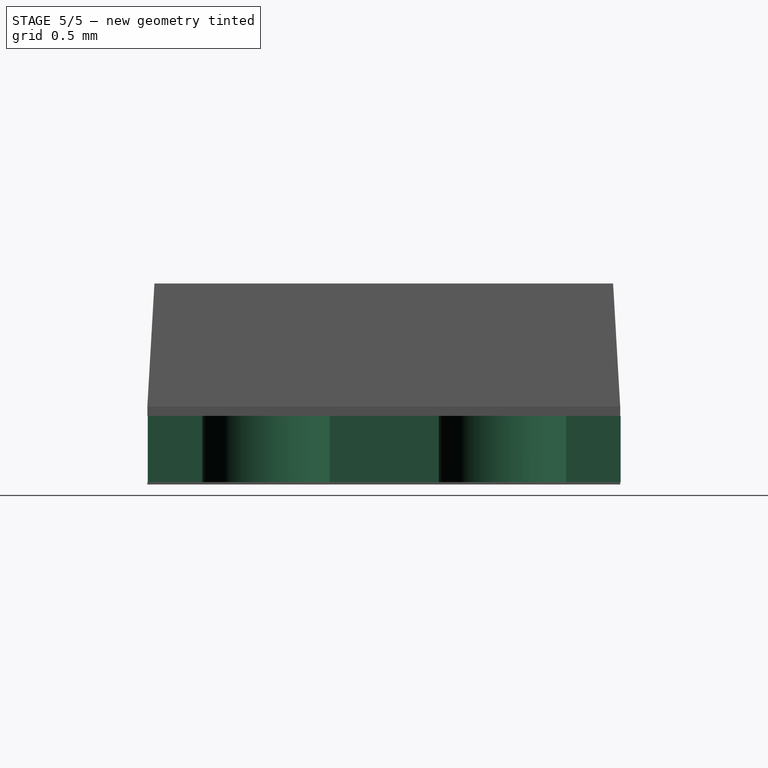
[diagram: stage 5 of 5 — right view after this stage's code; geometry added in this stage tinted green]
FEATURE [Sketcher::SketchObject] Sketch003
  ArcFitTolerance = 1e-06
  AttachmentSupport = -> [Fusion001]
  ExternalGeometry = -> [Fusion001]
  FullyConstrained = true
  MakeInternals = false
  MapMode = 5
  Placement = pos=(0,0,0.035) rot=(0,0,1;0rad)
  sketch-geometry (30):
    g0: LineSegment StartX=-1.067 StartY=0.897 StartZ=0 EndX=-1.1 EndY=0.897 EndZ=0
    g1: LineSegment StartX=-1.1 StartY=0.897 StartZ=0 EndX=-1.1 EndY=1.002 EndZ=0
    g2: LineSegment StartX=-1.1 StartY=1.002 StartZ=0 EndX=0 EndY=1.002 EndZ=0
    g3: LineSegment StartX=-1.067 StartY=0.897 StartZ=0 EndX=-1.067 EndY=0.771399 EndZ=0
    g4: LineSegment StartX=-1.067 StartY=0.232601 StartZ=0 EndX=-1.067 EndY=0.107 EndZ=0
    g5: LineSegment StartX=-1.067 StartY=0.107 StartZ=0 EndX=-1.1 EndY=0.107 EndZ=0
    g6: LineSegment StartX=-1.1 StartY=0.107 StartZ=0 EndX=-1.1 EndY=-0.103 EndZ=0
    g7: LineSegment StartX=-1.1 StartY=-0.103 StartZ=0 EndX=-1.067 EndY=-0.103 EndZ=0
    g8: LineSegment StartX=-1.067 StartY=-0.103 StartZ=0 EndX=-1.067 EndY=-0.228601 EndZ=0
    g9: LineSegment StartX=-1.067 StartY=-0.767399 StartZ=0 EndX=-1.067 EndY=-0.893 EndZ=0
    g10: LineSegment StartX=-1.067 StartY=-0.893 StartZ=0 EndX=-1.1 EndY=-0.893 EndZ=0
    g11: LineSegment StartX=-1.1 StartY=-0.893 StartZ=0 EndX=-1.1 EndY=-0.998 EndZ=0
    g12: LineSegment StartX=-1.1 StartY=-0.998 StartZ=0 EndX=0 EndY=-0.998 EndZ=0
    g13: ArcOfCircle CenterX=-1.16 CenterY=0.502 CenterZ=0 NormalX=0 NormalY=0 NormalZ=1 AngleXU=0 Radius=0.285 StartAngle=5.04479 EndAngle=7.52158
    g14: ArcOfCircle CenterX=-1.16 CenterY=-0.498 CenterZ=0 NormalX=0 NormalY=0 NormalZ=1 AngleXU=0 Radius=0.285 StartAngle=5.04479 EndAngle=7.52158
    g15: LineSegment StartX=1.067 StartY=0.897 StartZ=0 EndX=1.1 EndY=0.897 EndZ=0
    g16: LineSegment StartX=1.1 StartY=0.897 StartZ=0 EndX=1.1 EndY=1.002 EndZ=0
    g17: LineSegment StartX=1.1 StartY=1.002 StartZ=0 EndX=0 EndY=1.002 EndZ=0
    g18: LineSegment StartX=1.067 StartY=0.897 StartZ=0 EndX=1.067 EndY=0.771399 EndZ=0
    g19: LineSegment StartX=1.067 StartY=0.232601 StartZ=0 EndX=1.067 EndY=0.107 EndZ=0
    g20: LineSegment StartX=1.067 StartY=0.107 StartZ=0 EndX=1.1 EndY=0.107 EndZ=0
    g21: LineSegment StartX=1.1 StartY=0.107 StartZ=0 EndX=1.1 EndY=-0.103 EndZ=0
    g22: LineSegment StartX=1.1 StartY=-0.103 StartZ=0 EndX=1.067 EndY=-0.103 EndZ=0
    g23: LineSegment StartX=1.067 StartY=-0.103 StartZ=0 EndX=1.067 EndY=-0.228601 EndZ=0
    g24: LineSegment StartX=1.067 StartY=-0.767399 StartZ=0 EndX=1.067 EndY=-0.893 EndZ=0
    g25: LineSegment StartX=1.067 StartY=-0.893 StartZ=0 EndX=1.1 EndY=-0.893 EndZ=0
    g26: LineSegment StartX=1.1 StartY=-0.893 StartZ=0 EndX=1.1 EndY=-0.998 EndZ=0
    g27: LineSegment StartX=1.1 StartY=-0.998 StartZ=0 EndX=0 EndY=-0.998 EndZ=0
    g28: ArcOfCircle CenterX=1.16 CenterY=0.502 CenterZ=0 NormalX=0 NormalY=0 NormalZ=1 AngleXU=0 Radius=0.285 StartAngle=1.9032 EndAngle=4.37999
    g29: ArcOfCircle CenterX=1.16 CenterY=-0.498 CenterZ=0 NormalX=0 NormalY=0 NormalZ=1 AngleXU=0 Radius=0.285 StartAngle=1.9032 EndAngle=4.37999
  constraints (72):
    c: Coincident(g0,g-3)
    c: Horizontal(g0)
    c: Coincident(g1,g0)
    c: Coincident(g2,g1)
    c: PointOnObject(g2,g-2)
    c: Horizontal(g2)
    c: Coincident(g3,g0)
    c: Coincident(g3,g-4)
    c: Coincident(g4,g-5)
    c: Coincident(g4,g-5)
    c: Coincident(g5,g4)
    c: Vertical(g6)
    c: Coincident(g7,g6)
    c: Coincident(g7,g-6)
    c: Coincident(g8,g7)
    c: Coincident(g8,g-7)
    c: Coincident(g9,g-8)
    c: Coincident(g9,g-8)
    c: Coincident(g10,g9)
    c: Horizontal(g10)
    c: Coincident(g11,g10)
    c: Vertical(g11)
    c: Coincident(g12,g11)
    c: PointOnObject(g12,g-2)
    c: Horizontal(g12)
    c: DistanceX(g12,g12) = 1.1
    c: Distance(g12,g2) = 2
    c: Equal(g12,g2)
    c: Vertical(g1)
    c: Horizontal(g7)
    c: Horizontal(g5)
    c: Vertical(g10,g6)
    c: Coincident(g5,g6)
    c: Coincident(g13,g-4)
    c: Coincident(g13,g3)
    c: Coincident(g14,g-7)
    c: Coincident(g14,g8)
    c: PointOnObject(g13,g4)
    c: PointOnObject(g14,g9)
    c: Equal(g11,g1)
    c: Symmetric(g0,g15,g-2)
    c: Symmetric(g0,g15,g-2)
    c: Symmetric(g1,g16,g-2)
    c: Symmetric(g1,g16,g-2)
    c: Symmetric(g2,g17,g-2)
    c: Symmetric(g3,g18,g-2)
    c: Symmetric(g3,g18,g-2)
    c: Symmetric(g4,g19,g-2)
    c: Symmetric(g4,g19,g-2)
    c: Symmetric(g5,g20,g-2)
    c: Symmetric(g5,g20,g-2)
    c: Symmetric(g6,g21,g-2)
    c: Symmetric(g6,g21,g-2)
    c: Symmetric(g7,g22,g-2)
    c: Symmetric(g7,g22,g-2)
    c: Symmetric(g8,g23,g-2)
    c: Symmetric(g8,g23,g-2)
    c: Symmetric(g9,g24,g-2)
    c: Symmetric(g9,g24,g-2)
    c: Symmetric(g10,g25,g-2)
    c: Symmetric(g10,g25,g-2)
    c: Symmetric(g11,g26,g-2)
    c: Symmetric(g11,g26,g-2)
    c: Symmetric(g12,g27,g-2)
    c: Equal(g13,g28)
    c: Symmetric(g13,g28,g-2)
    c: Symmetric(g13,g28,g-2)
    c: Equal(g14,g29)
    c: Symmetric(g14,g29,g-2)
    c: Symmetric(g14,g29,g-2)
    c: Coincident(g27,g12)
    c: Coincident(g17,g2)
FEATURE [Part::Extrusion] Extrude003  label="Board"
  Base = -> Sketch003
  Dir = (0,0,1)
  DirMode = 2
  FaceMakerClass = Part::FaceMakerBullseye
  FaceMakerMode = 3
  LengthFwd = 0.28
  LengthRev = 0
  Solid = true
  Symmetric = false
FEATURE [Sketcher::SketchObject] Sketch004  label="IC+LEDs"
  ArcFitTolerance = 1e-06
  AttachmentSupport = -> [Extrude003]
  ExternalGeometry = -> [Fusion001]
  FullyConstrained = true
  MakeInternals = false
  MapMode = 5
  Placement = pos=(0,0,0.315) rot=(0,0,1;0rad)
  sketch-geometry (20):
    g0: LineSegment [constr] StartX=-0.725 StartY=1 StartZ=0 EndX=-0.725 EndY=-1 EndZ=0
    g1: LineSegment [constr] StartX=-0.725 StartY=-1 StartZ=0 EndX=0.725 EndY=-1 EndZ=0
    g2: LineSegment [constr] StartX=0.725 StartY=-1 StartZ=0 EndX=0.725 EndY=1 EndZ=0
    g3: LineSegment [constr] StartX=0.725 StartY=1 StartZ=0 EndX=-0.725 EndY=1 EndZ=0
    g4: LineSegment StartX=-0.28 StartY=-0.12 StartZ=0 EndX=-0.28 EndY=-0.545 EndZ=0
    g5: LineSegment StartX=-0.28 StartY=-0.545 StartZ=0 EndX=0.485 EndY=-0.545 EndZ=0
    g6: LineSegment StartX=0.485 StartY=-0.545 StartZ=0 EndX=0.485 EndY=-0.12 EndZ=0
    g7: LineSegment StartX=0.485 StartY=-0.12 StartZ=0 EndX=-0.28 EndY=-0.12 EndZ=0
    g8: LineSegment StartX=-0.385 StartY=0.325 StartZ=0 EndX=-0.385 EndY=0.12 EndZ=0
    g9: LineSegment StartX=-0.385 StartY=0.12 StartZ=0 EndX=-0.235 EndY=0.12 EndZ=0
    g10: LineSegment StartX=-0.235 StartY=0.12 StartZ=0 EndX=-0.235 EndY=0.325 EndZ=0
    g11: LineSegment StartX=-0.235 StartY=0.325 StartZ=0 EndX=-0.385 EndY=0.325 EndZ=0
    g12: LineSegment StartX=-0.09 StartY=0.335 StartZ=0 EndX=-0.09 EndY=0.125 EndZ=0
    g13: LineSegment StartX=-0.09 StartY=0.125 StartZ=0 EndX=0.105 EndY=0.125 EndZ=0
    g14: LineSegment StartX=0.105 StartY=0.125 StartZ=0 EndX=0.105 EndY=0.335 EndZ=0
    g15: LineSegment StartX=0.105 StartY=0.335 StartZ=0 EndX=-0.09 EndY=0.335 EndZ=0
    g16: LineSegment StartX=0.265 StartY=0.315 StartZ=0 EndX=0.265 EndY=0.13 EndZ=0
    g17: LineSegment StartX=0.265 StartY=0.13 StartZ=0 EndX=0.395 EndY=0.13 EndZ=0
    g18: LineSegment StartX=0.395 StartY=0.13 StartZ=0 EndX=0.395 EndY=0.315 EndZ=0
    g19: LineSegment StartX=0.395 StartY=0.315 StartZ=0 EndX=0.265 EndY=0.315 EndZ=0
  constraints (59):
    c: Coincident(g0,g1)
    c: Coincident(g1,g2)
    c: Coincident(g2,g3)
    c: Coincident(g3,g0)
    c: Vertical(g0)
    c: Vertical(g2)
    c: Horizontal(g1)
    c: Horizontal(g3)
    c: Symmetric(g1,g0,g-1)
    c: DistanceY(g2,g2) = 2
    c: PointOnObject(g-3,g2)
    c: Coincident(g4,g5)
    c: Coincident(g5,g6)
    c: Coincident(g6,g7)
    c: Coincident(g7,g4)
    c: Vertical(g4)
    c: Vertical(g6)
    c: Horizontal(g5)
    c: Horizontal(g7)
    c: Coincident(g8,g9)
    c: Coincident(g9,g10)
    c: Coincident(g10,g11)
    c: Coincident(g11,g8)
    c: Vertical(g8)
    c: Vertical(g10)
    c: Horizontal(g9)
    c: Horizontal(g11)
    c: Coincident(g12,g13)
    c: Coincident(g13,g14)
    c: Coincident(g14,g15)
    c: Coincident(g15,g12)
    c: Vertical(g12)
    c: Vertical(g14)
    c: Horizontal(g13)
    c: Horizontal(g15)
    c: Coincident(g16,g17)
    c: Coincident(g17,g18)
    c: Coincident(g18,g19)
    c: Coincident(g19,g16)
    c: Vertical(g16)
    c: Vertical(g18)
    c: Horizontal(g17)
    c: Horizontal(g19)
    c: DistanceX(g5,g5) = 0.765
    c: DistanceY(g4,g4) = 0.425
    c: DistanceX(g11,g11) = 0.15
    c: DistanceY(g8,g8) = 0.205
    c: DistanceY(g12,g12) = 0.21
    c: DistanceX(g15,g15) = 0.195
    c: DistanceY(g16,g16) = 0.185
    c: DistanceX(g19,g19) = 0.13
    c: DistanceY(g-1,g12) = 0.125
    c: DistanceY(g-1,g8) = 0.12
    c: DistanceY(g-1,g16) = 0.13
    c: DistanceY(g4,g-1) = 0.12
    c: DistanceX(g9,g-1) = 0.235
    c: DistanceX(g-1,g13) = 0.105
    c: DistanceX(g-1,g17) = 0.395
    c: DistanceX(g-1,g6) = 0.485
FEATURE [Sketcher::SketchObject] Sketch005  label="ICSketch"
  ArcFitTolerance = 1e-06
  AttachmentSupport = -> [Extrude003]
  ExternalGeometry = -> [Fusion001]
  FullyConstrained = true
  MakeInternals = false
  MapMode = 5
  Placement = pos=(0,0,0.315) rot=(0,0,1;0rad)
  expr: Constraints[43] = Sketch004.Constraints[43]
  expr: Constraints[44] = Sketch004.Constraints[44]
  expr: Constraints[45] = Sketch004.Constraints[45]
  expr: Constraints[46] = Sketch004.Constraints[46]
  expr: Constraints[47] = Sketch004.Constraints[47]
  expr: Constraints[48] = Sketch004.Constraints[48]
  expr: Constraints[49] = Sketch004.Constraints[49]
  expr: Constraints[50] = Sketch004.Constraints[50]
  expr: Constraints[51] = Sketch004.Constraints[51]
  expr: Constraints[52] = Sketch004.Constraints[52]
  expr: Constraints[53] = Sketch004.Constraints[53]
  expr: Constraints[54] = Sketch004.Constraints[54]
  expr: Constraints[55] = Sketch004.Constraints[55]
  expr: Constraints[56] = Sketch004.Constraints[56]
  expr: Constraints[57] = Sketch004.Constraints[57]
  expr: Constraints[58] = Sketch004.Constraints[58]
  expr: Constraints[9] = Sketch004.Constraints[9]
  sketch-geometry (20):
    g0: LineSegment [constr] StartX=-0.725 StartY=1 StartZ=0 EndX=-0.725 EndY=-1 EndZ=0
    g1: LineSegment [constr] StartX=-0.725 StartY=-1 StartZ=0 EndX=0.725 EndY=-1 EndZ=0
    g2: LineSegment [constr] StartX=0.725 StartY=-1 StartZ=0 EndX=0.725 EndY=1 EndZ=0
    g3: LineSegment [constr] StartX=0.725 StartY=1 StartZ=0 EndX=-0.725 EndY=1 EndZ=0
    g4: LineSegment StartX=-0.28 StartY=-0.12 StartZ=0 EndX=-0.28 EndY=-0.545 EndZ=0
    g5: LineSegment StartX=-0.28 StartY=-0.545 StartZ=0 EndX=0.485 EndY=-0.545 EndZ=0
    g6: LineSegment StartX=0.485 StartY=-0.545 StartZ=0 EndX=0.485 EndY=-0.12 EndZ=0
    g7: LineSegment StartX=0.485 StartY=-0.12 StartZ=0 EndX=-0.28 EndY=-0.12 EndZ=0
    g8: LineSegment [constr] StartX=-0.385 StartY=0.325 StartZ=0 EndX=-0.385 EndY=0.12 EndZ=0
    g9: LineSegment [constr] StartX=-0.385 StartY=0.12 StartZ=0 EndX=-0.235 EndY=0.12 EndZ=0
    g10: LineSegment [constr] StartX=-0.235 StartY=0.12 StartZ=0 EndX=-0.235 EndY=0.325 EndZ=0
    g11: LineSegment [constr] StartX=-0.235 StartY=0.325 StartZ=0 EndX=-0.385 EndY=0.325 EndZ=0
    g12: LineSegment [constr] StartX=-0.09 StartY=0.335 StartZ=0 EndX=-0.09 EndY=0.125 EndZ=0
    g13: LineSegment [constr] StartX=-0.09 StartY=0.125 StartZ=0 EndX=0.105 EndY=0.125 EndZ=0
    g14: LineSegment [constr] StartX=0.105 StartY=0.125 StartZ=0 EndX=0.105 EndY=0.335 EndZ=0
    g15: LineSegment [constr] StartX=0.105 StartY=0.335 StartZ=0 EndX=-0.09 EndY=0.335 EndZ=0
    g16: LineSegment [constr] StartX=0.265 StartY=0.315 StartZ=0 EndX=0.265 EndY=0.13 EndZ=0
    g17: LineSegment [constr] StartX=0.265 StartY=0.13 StartZ=0 EndX=0.395 EndY=0.13 EndZ=0
    g18: LineSegment [constr] StartX=0.395 StartY=0.13 StartZ=0 EndX=0.395 EndY=0.315 EndZ=0
    g19: LineSegment [constr] StartX=0.395 StartY=0.315 StartZ=0 EndX=0.265 EndY=0.315 EndZ=0
  constraints (59):
    c: Coincident(g0,g1)
    c: Coincident(g1,g2)
    c: Coincident(g2,g3)
    c: Coincident(g3,g0)
    c: Vertical(g0)
    c: Vertical(g2)
    c: Horizontal(g1)
    c: Horizontal(g3)
    c: Symmetric(g1,g0,g-1)
    c: DistanceY(g2,g2) = 2
    c: PointOnObject(g-3,g2)
    c: Coincident(g4,g5)
    c: Coincident(g5,g6)
    c: Coincident(g6,g7)
    c: Coincident(g7,g4)
    c: Vertical(g4)
    c: Vertical(g6)
    c: Horizontal(g5)
    c: Horizontal(g7)
    c: Coincident(g8,g9)
    c: Coincident(g9,g10)
    c: Coincident(g10,g11)
    c: Coincident(g11,g8)
    c: Vertical(g8)
    c: Vertical(g10)
    c: Horizontal(g9)
    c: Horizontal(g11)
    c: Coincident(g12,g13)
    c: Coincident(g13,g14)
    c: Coincident(g14,g15)
    c: Coincident(g15,g12)
    c: Vertical(g12)
    c: Vertical(g14)
    c: Horizontal(g13)
    c: Horizontal(g15)
    c: Coincident(g16,g17)
    c: Coincident(g17,g18)
    c: Coincident(g18,g19)
    c: Coincident(g19,g16)
    c: Vertical(g16)
    c: Vertical(g18)
    c: Horizontal(g17)
    c: Horizontal(g19)
    c: DistanceX(g5,g5) = 0.765
    c: DistanceY(g4,g4) = 0.425
    c: DistanceX(g11,g11) = 0.15
    c: DistanceY(g8,g8) = 0.205
    c: DistanceY(g12,g12) = 0.21
    c: DistanceX(g15,g15) = 0.195
    c: DistanceY(g16,g16) = 0.185
    c: DistanceX(g19,g19) = 0.13
    c: DistanceY(g-1,g12) = 0.125
    c: DistanceY(g-1,g8) = 0.12
    c: DistanceY(g-1,g16) = 0.13
    c: DistanceY(g4,g-1) = 0.12
    c: DistanceX(g9,g-1) = 0.235
    c: DistanceX(g-1,g13) = 0.105
    c: DistanceX(g-1,g17) = 0.395
    c: DistanceX(g-1,g6) = 0.485
FEATURE [Part::Extrusion] Extrude004  label="IC"
  Base = -> Sketch005
  Dir = (0,0,1)
  DirMode = 2
  FaceMakerClass = Part::FaceMakerBullseye
  FaceMakerMode = 3
  LengthFwd = 0.05
  LengthRev = 0
  Solid = true
  Symmetric = false
FEATURE [Sketcher::SketchObject] Sketch006  label="BSketch"
  ArcFitTolerance = 1e-06
  AttachmentSupport = -> [Extrude003]
  ExternalGeometry = -> [Fusion001]
  FullyConstrained = true
  MakeInternals = false
  MapMode = 5
  Placement = pos=(0,0,0.315) rot=(0,0,1;0rad)
  expr: Constraints[43] = Sketch004.Constraints[43]
  expr: Constraints[44] = Sketch004.Constraints[44]
  expr: Constraints[45] = Sketch004.Constraints[45]
  expr: Constraints[46] = Sketch004.Constraints[46]
  expr: Constraints[47] = Sketch004.Constraints[47]
  expr: Constraints[48] = Sketch004.Constraints[48]
  expr: Constraints[49] = Sketch004.Constraints[49]
  expr: Constraints[50] = Sketch004.Constraints[50]
  expr: Constraints[51] = Sketch004.Constraints[51]
  expr: Constraints[52] = Sketch004.Constraints[52]
  expr: Constraints[53] = Sketch004.Constraints[53]
  expr: Constraints[54] = Sketch004.Constraints[54]
  expr: Constraints[55] = Sketch004.Constraints[55]
  expr: Constraints[56] = Sketch004.Constraints[56]
  expr: Constraints[57] = Sketch004.Constraints[57]
  expr: Constraints[58] = Sketch004.Constraints[58]
  expr: Constraints[9] = Sketch004.Constraints[9]
  sketch-geometry (20):
    g0: LineSegment [constr] StartX=-0.725 StartY=1 StartZ=0 EndX=-0.725 EndY=-1 EndZ=0
    g1: LineSegment [constr] StartX=-0.725 StartY=-1 StartZ=0 EndX=0.725 EndY=-1 EndZ=0
    g2: LineSegment [constr] StartX=0.725 StartY=-1 StartZ=0 EndX=0.725 EndY=1 EndZ=0
    g3: LineSegment [constr] StartX=0.725 StartY=1 StartZ=0 EndX=-0.725 EndY=1 EndZ=0
    g4: LineSegment [constr] StartX=-0.28 StartY=-0.12 StartZ=0 EndX=-0.28 EndY=-0.545 EndZ=0
    g5: LineSegment [constr] StartX=-0.28 StartY=-0.545 StartZ=0 EndX=0.485 EndY=-0.545 EndZ=0
    g6: LineSegment [constr] StartX=0.485 StartY=-0.545 StartZ=0 EndX=0.485 EndY=-0.12 EndZ=0
    g7: LineSegment [constr] StartX=0.485 StartY=-0.12 StartZ=0 EndX=-0.28 EndY=-0.12 EndZ=0
    g8: LineSegment StartX=-0.385 StartY=0.325 StartZ=0 EndX=-0.385 EndY=0.12 EndZ=0
    g9: LineSegment StartX=-0.385 StartY=0.12 StartZ=0 EndX=-0.235 EndY=0.12 EndZ=0
    g10: LineSegment StartX=-0.235 StartY=0.12 StartZ=0 EndX=-0.235 EndY=0.325 EndZ=0
    g11: LineSegment StartX=-0.235 StartY=0.325 StartZ=0 EndX=-0.385 EndY=0.325 EndZ=0
    g12: LineSegment [constr] StartX=-0.09 StartY=0.335 StartZ=0 EndX=-0.09 EndY=0.125 EndZ=0
    g13: LineSegment [constr] StartX=-0.09 StartY=0.125 StartZ=0 EndX=0.105 EndY=0.125 EndZ=0
    g14: LineSegment [constr] StartX=0.105 StartY=0.125 StartZ=0 EndX=0.105 EndY=0.335 EndZ=0
    g15: LineSegment [constr] StartX=0.105 StartY=0.335 StartZ=0 EndX=-0.09 EndY=0.335 EndZ=0
    g16: LineSegment [constr] StartX=0.265 StartY=0.315 StartZ=0 EndX=0.265 EndY=0.13 EndZ=0
    g17: LineSegment [constr] StartX=0.265 StartY=0.13 StartZ=0 EndX=0.395 EndY=0.13 EndZ=0
    g18: LineSegment [constr] StartX=0.395 StartY=0.13 StartZ=0 EndX=0.395 EndY=0.315 EndZ=0
    g19: LineSegment [constr] StartX=0.395 StartY=0.315 StartZ=0 EndX=0.265 EndY=0.315 EndZ=0
  constraints (59):
    c: Coincident(g0,g1)
    c: Coincident(g1,g2)
    c: Coincident(g2,g3)
    c: Coincident(g3,g0)
    c: Vertical(g0)
    c: Vertical(g2)
    c: Horizontal(g1)
    c: Horizontal(g3)
    c: Symmetric(g1,g0,g-1)
    c: DistanceY(g2,g2) = 2
    c: PointOnObject(g-3,g2)
    c: Coincident(g4,g5)
    c: Coincident(g5,g6)
    c: Coincident(g6,g7)
    c: Coincident(g7,g4)
    c: Vertical(g4)
    c: Vertical(g6)
    c: Horizontal(g5)
    c: Horizontal(g7)
    c: Coincident(g8,g9)
    c: Coincident(g9,g10)
    c: Coincident(g10,g11)
    c: Coincident(g11,g8)
    c: Vertical(g8)
    c: Vertical(g10)
    c: Horizontal(g9)
    c: Horizontal(g11)
    c: Coincident(g12,g13)
    c: Coincident(g13,g14)
    c: Coincident(g14,g15)
    c: Coincident(g15,g12)
    c: Vertical(g12)
    c: Vertical(g14)
    c: Horizontal(g13)
    c: Horizontal(g15)
    c: Coincident(g16,g17)
    c: Coincident(g17,g18)
    c: Coincident(g18,g19)
    c: Coincident(g19,g16)
    c: Vertical(g16)
    c: Vertical(g18)
    c: Horizontal(g17)
    c: Horizontal(g19)
    c: DistanceX(g5,g5) = 0.765
    c: DistanceY(g4,g4) = 0.425
    c: DistanceX(g11,g11) = 0.15
    c: DistanceY(g8,g8) = 0.205
    c: DistanceY(g12,g12) = 0.21
    c: DistanceX(g15,g15) = 0.195
    c: DistanceY(g16,g16) = 0.185
    c: DistanceX(g19,g19) = 0.13
    c: DistanceY(g-1,g12) = 0.125
    c: DistanceY(g-1,g8) = 0.12
    c: DistanceY(g-1,g16) = 0.13
    c: DistanceY(g4,g-1) = 0.12
    c: DistanceX(g9,g-1) = 0.235
    c: DistanceX(g-1,g13) = 0.105
    c: DistanceX(g-1,g17) = 0.395
    c: DistanceX(g-1,g6) = 0.485
FEATURE [Part::Extrusion] Extrude005  label="B"
  Base = -> Sketch006
  Dir = (0,0,1)
  DirMode = 2
  FaceMakerClass = Part::FaceMakerBullseye
  FaceMakerMode = 3
  LengthFwd = 0.05
  LengthRev = 0
  Solid = true
  Symmetric = false
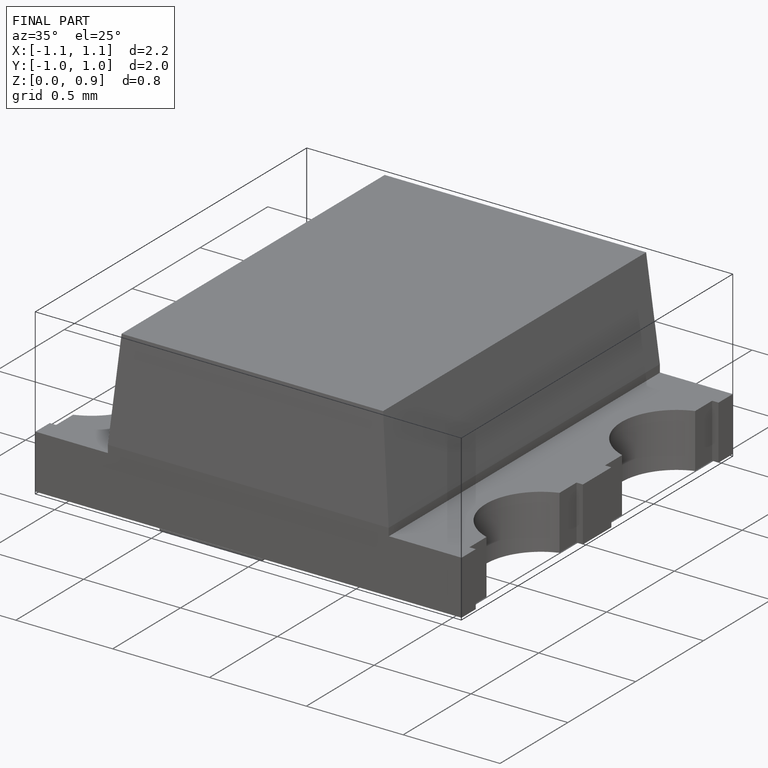
[diagram: finished part — iso view with bounding-box wireframe]
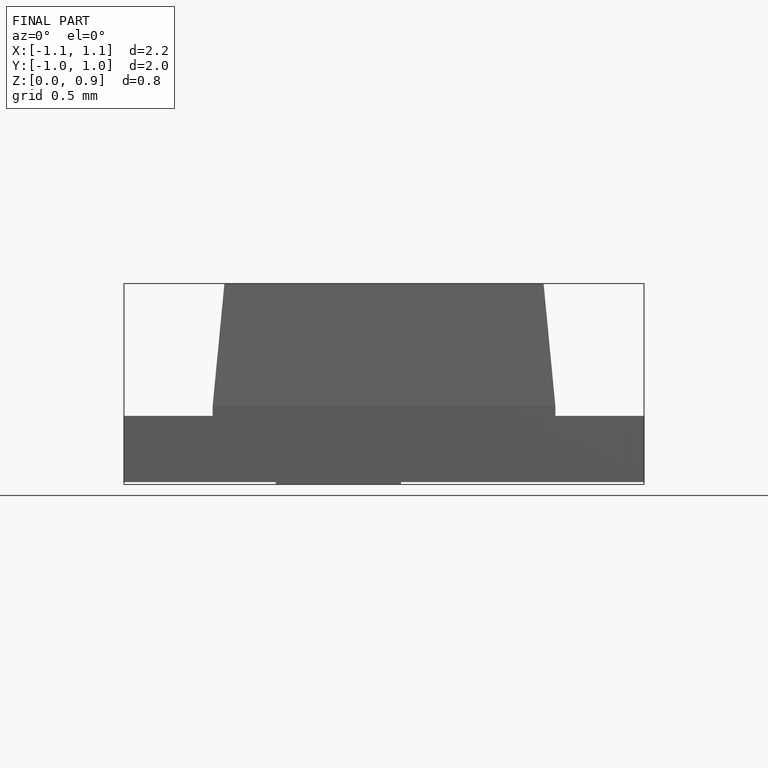
[diagram: finished part — front view with bounding-box wireframe]
